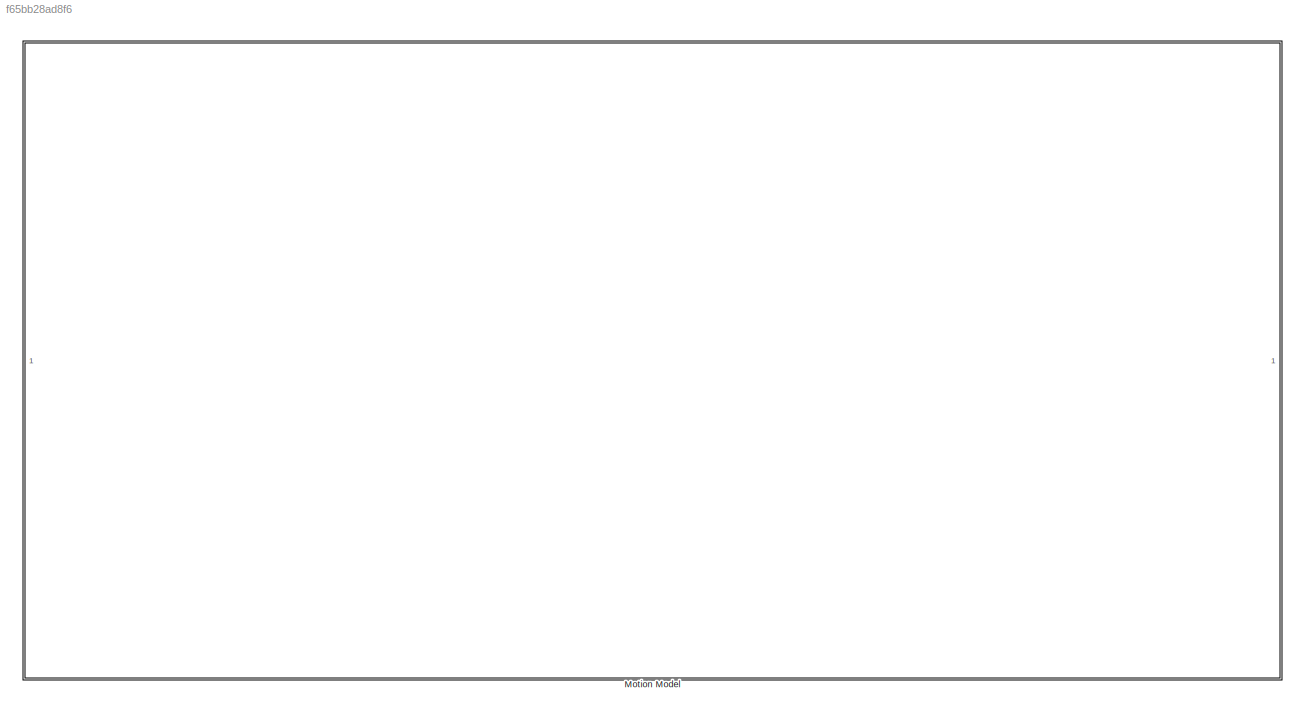
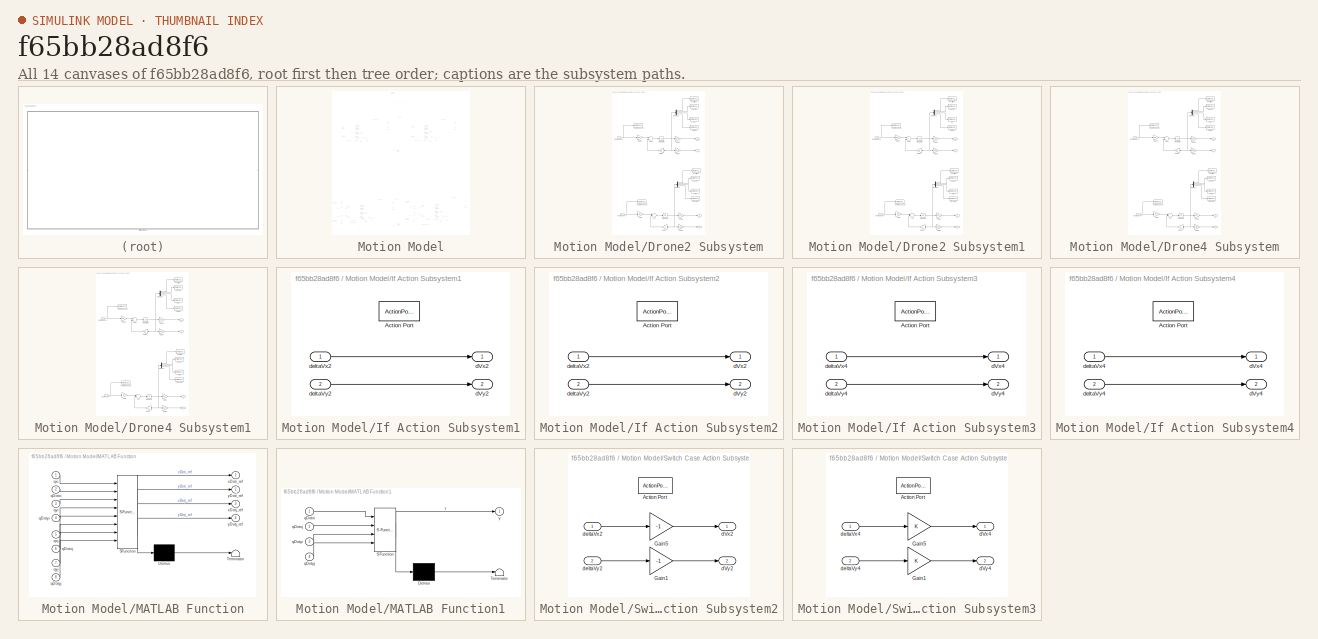
[diagram: thumbnail index - all 14 canvases of the model, root first then tree order]
MODEL slx_f65bb28ad8f6
KIND model
CONFIG AbsTol = auto
CONFIG EnableMultiTasking = off
CONFIG FixedStep = auto
CONFIG MaxStep = auto
CONFIG MinStep = auto
CONFIG RelTol = 1e-3
CONFIG SampleTimeConstraint = Unconstrained
CONFIG Solver = VariableStepAuto
CONFIG SolverName = VariableStepAuto
CONFIG StartTime = tStart 
CONFIG StopTime = tFinal
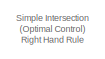
[diagram: Motion Model - part 1/10, top center region]
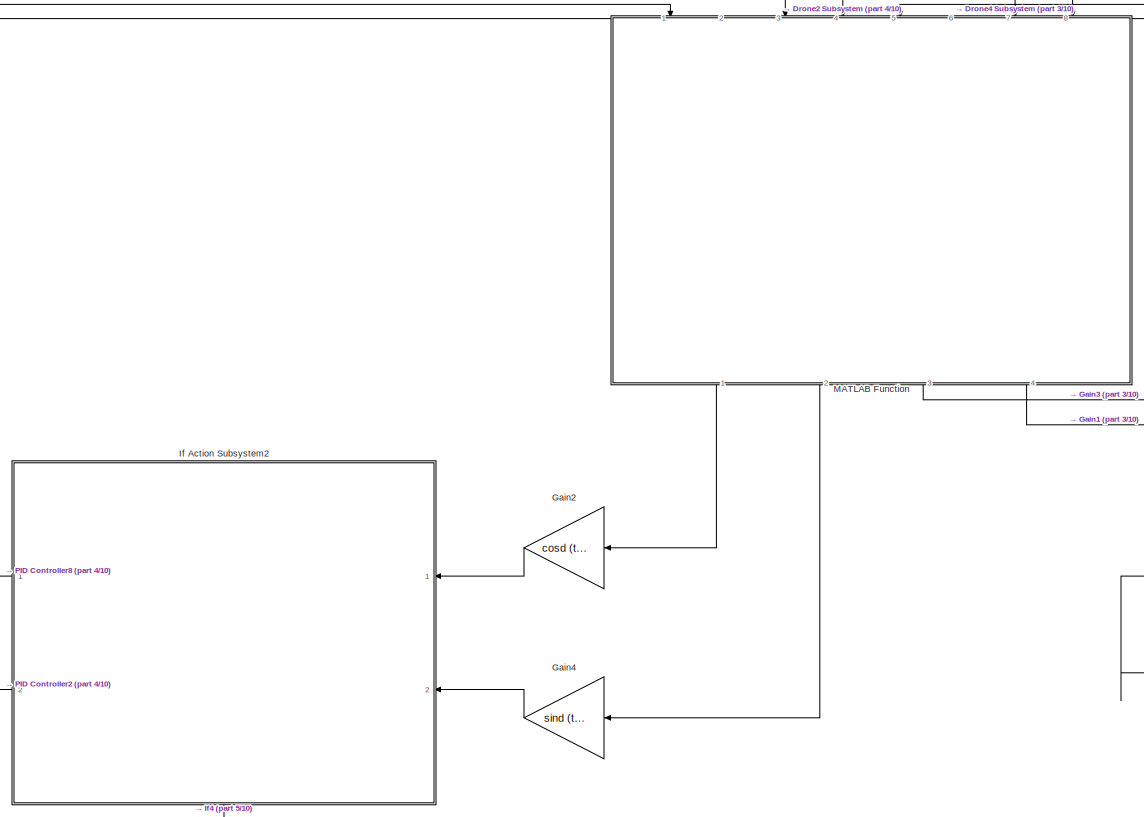
[diagram: Motion Model - part 2/10, top center region]
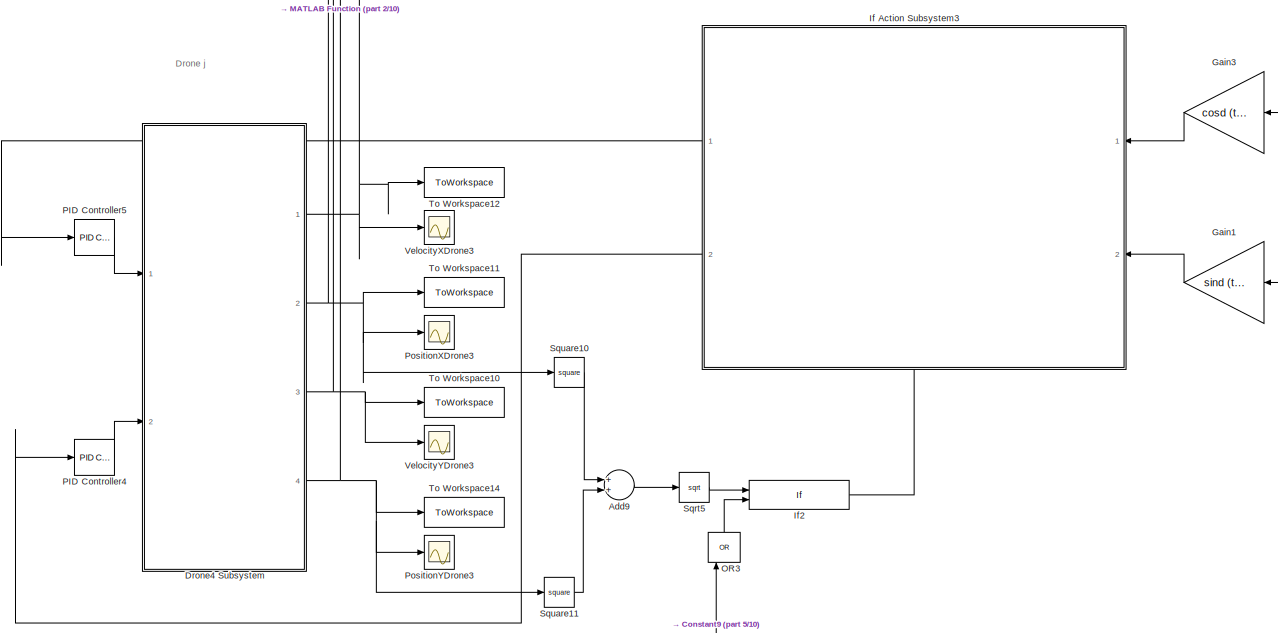
[diagram: Motion Model - part 3/10, top right region]
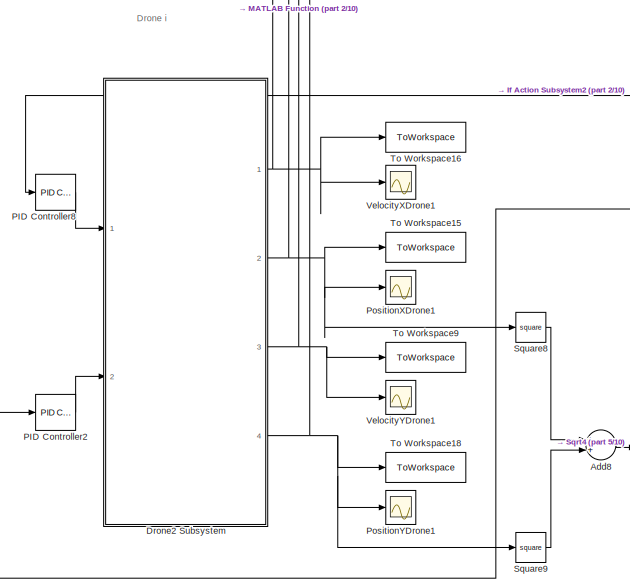
[diagram: Motion Model - part 4/10, top left region]
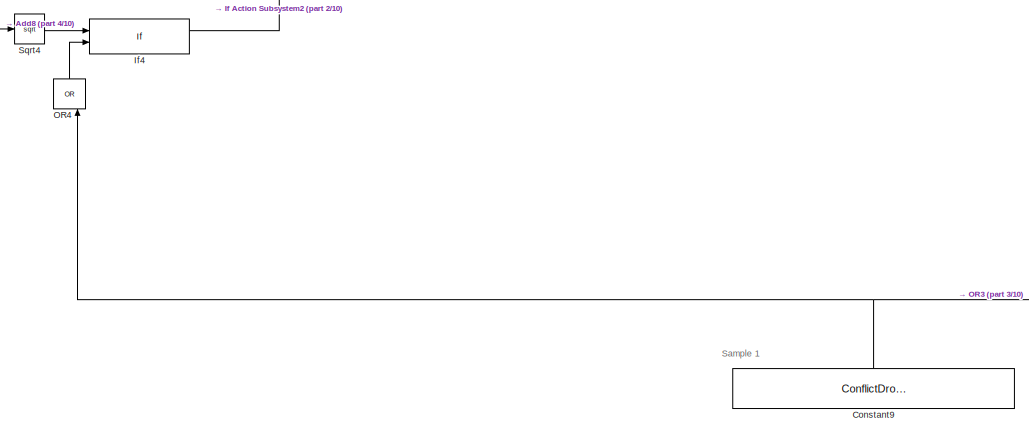
[diagram: Motion Model - part 5/10, central region]
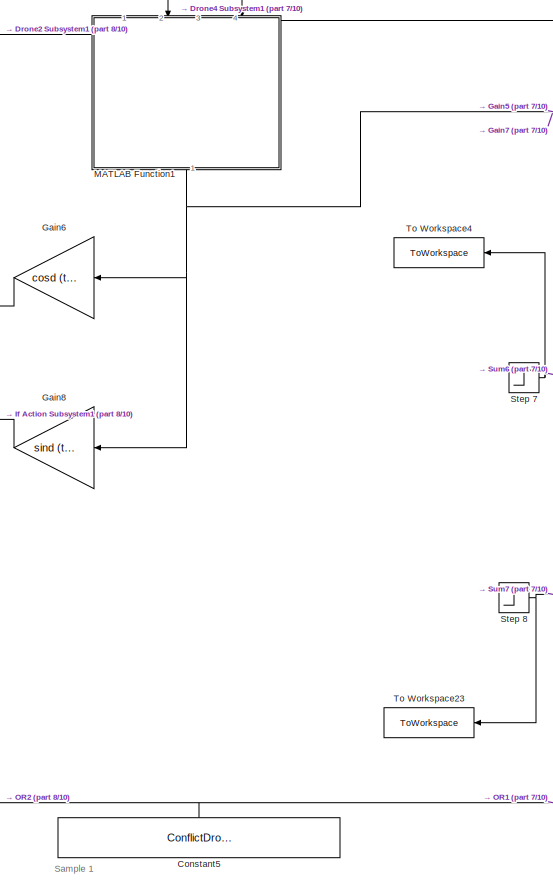
[diagram: Motion Model - part 6/10, bottom center region]
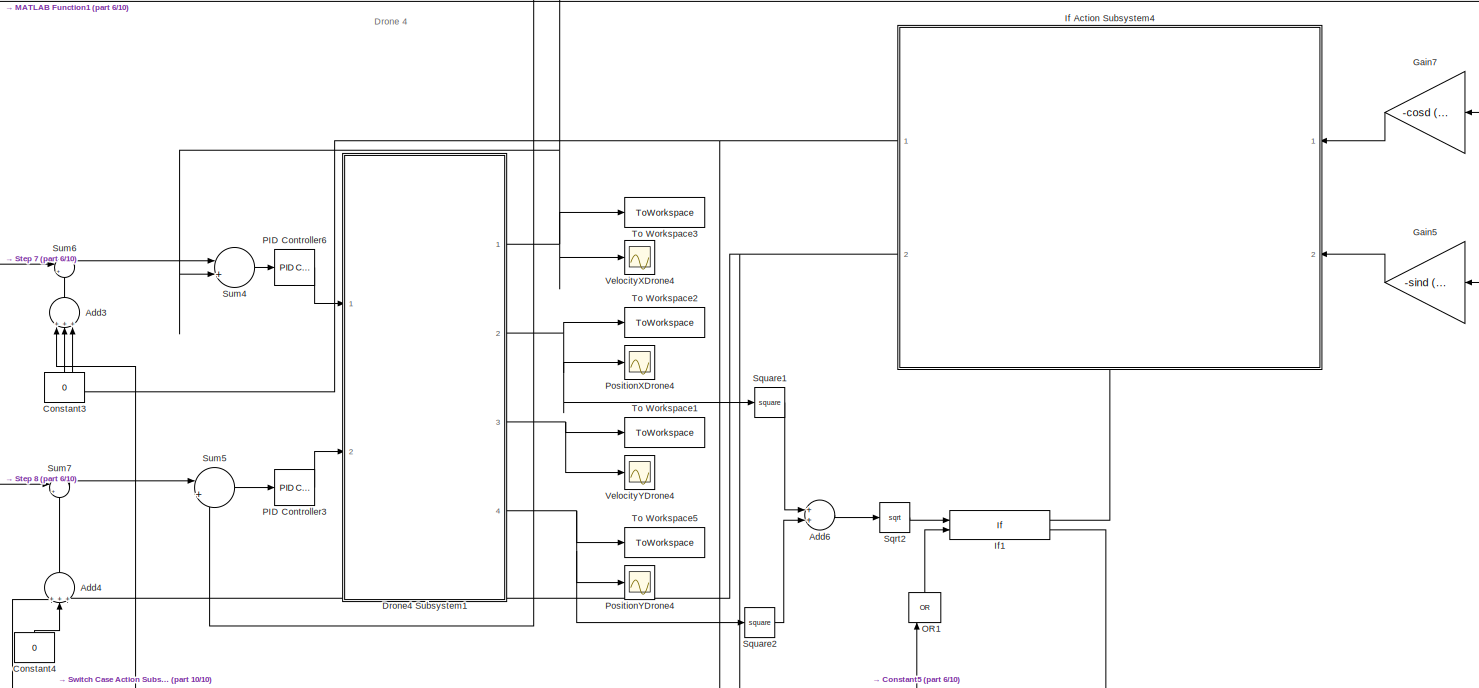
[diagram: Motion Model - part 7/10, bottom right region]
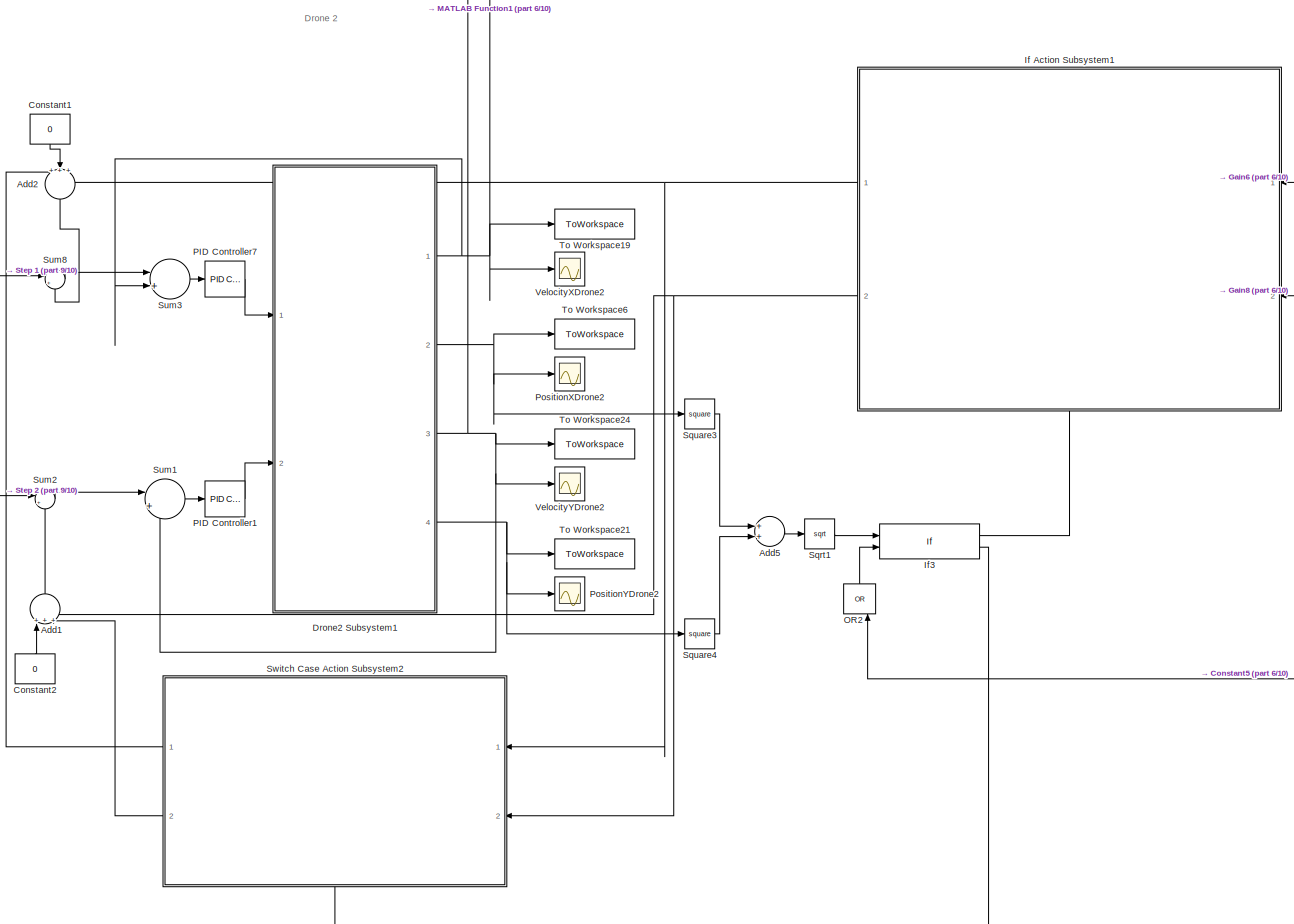
[diagram: Motion Model - part 8/10, bottom left region]
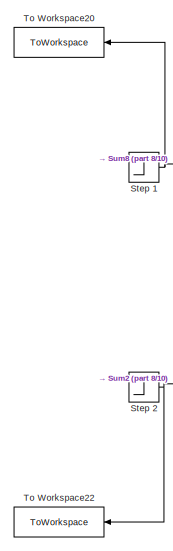
[diagram: Motion Model - part 9/10, bottom left region]
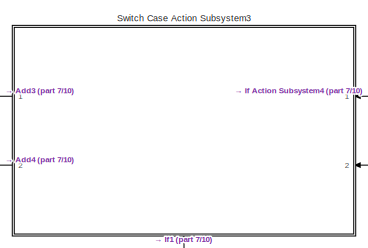
[diagram: Motion Model - part 10/10, bottom right region]
BLOCK [SubSystem] Motion Model
  Ports = []
  RequestExecContextInheritance = off
BLOCK [Sum] Motion Model/Add1
  Commented = on
  InputSameDT = off
  Inputs = +++
  OutDataTypeStr = Inherit: Inherit via internal rule
  Ports = [3, 1]
  SaturateOnIntegerOverflow = off
BLOCK [Sum] Motion Model/Add2
  Commented = on
  InputSameDT = off
  Inputs = +++
  OutDataTypeStr = Inherit: Inherit via internal rule
  Ports = [3, 1]
  SaturateOnIntegerOverflow = off
BLOCK [Sum] Motion Model/Add3
  Commented = on
  InputSameDT = off
  Inputs = +++
  OutDataTypeStr = Inherit: Inherit via internal rule
  Ports = [3, 1]
  SaturateOnIntegerOverflow = off
BLOCK [Sum] Motion Model/Add4
  Commented = on
  InputSameDT = off
  Inputs = +++
  OutDataTypeStr = Inherit: Inherit via internal rule
  Ports = [3, 1]
  SaturateOnIntegerOverflow = off
BLOCK [Sum] Motion Model/Add5
  Commented = on
  InputSameDT = off
  OutDataTypeStr = Inherit: Inherit via internal rule
  Ports = [2, 1]
  SaturateOnIntegerOverflow = off
BLOCK [Sum] Motion Model/Add6
  Commented = on
  InputSameDT = off
  OutDataTypeStr = Inherit: Inherit via internal rule
  Ports = [2, 1]
  SaturateOnIntegerOverflow = off
BLOCK [Sum] Motion Model/Add8
  InputSameDT = off
  OutDataTypeStr = Inherit: Inherit via internal rule
  Ports = [2, 1]
  SaturateOnIntegerOverflow = off
BLOCK [Sum] Motion Model/Add9
  InputSameDT = off
  OutDataTypeStr = Inherit: Inherit via internal rule
  Ports = [2, 1]
  SaturateOnIntegerOverflow = off
BLOCK [Constant] Motion Model/Constant1
  Commented = on
  Value = 0
BLOCK [Constant] Motion Model/Constant2
  Commented = on
  Value = 0
BLOCK [Constant] Motion Model/Constant3
  Commented = on
  Value = 0
BLOCK [Constant] Motion Model/Constant4
  Commented = on
  Value = 0
BLOCK [Constant] Motion Model/Constant5
  Commented = on
  Value = ConflictDrone2andDrone4
BLOCK [Constant] Motion Model/Constant9
  Value = ConflictDrone2andDrone4
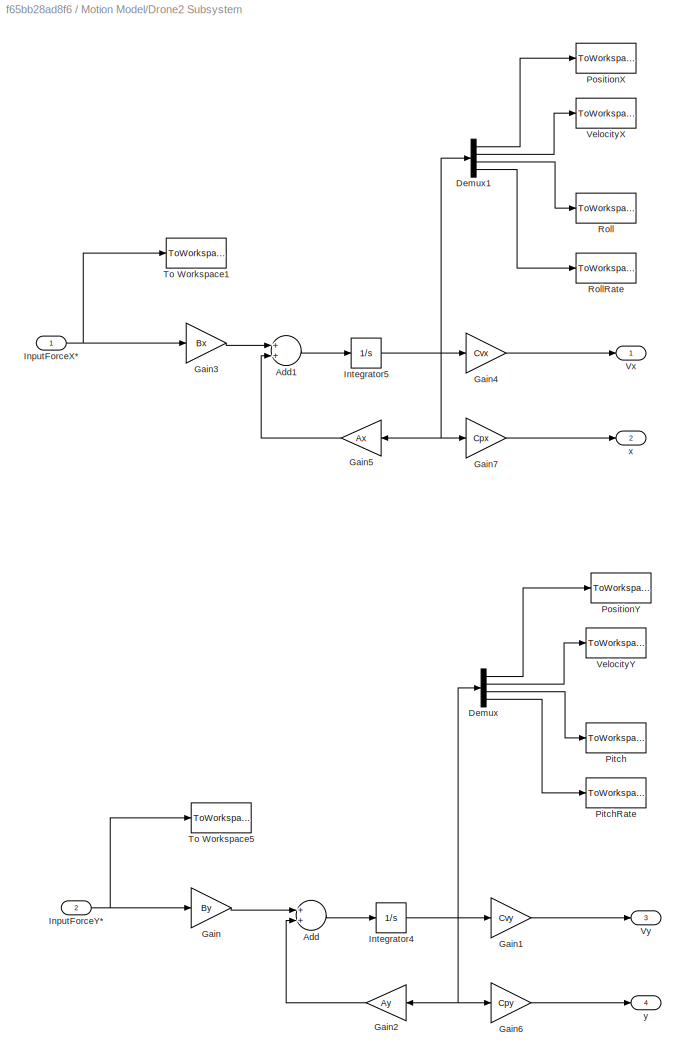
BLOCK [SubSystem] Motion Model/Drone2 Subsystem
  Ports = [2, 4]
  RequestExecContextInheritance = off
BLOCK [Sum] Motion Model/Drone2 Subsystem/Add
  InputSameDT = off
  OutDataTypeStr = Inherit: Inherit via internal rule
  Ports = [2, 1]
  SaturateOnIntegerOverflow = off
BLOCK [Sum] Motion Model/Drone2 Subsystem/Add1
  InputSameDT = off
  OutDataTypeStr = Inherit: Inherit via internal rule
  Ports = [2, 1]
  SaturateOnIntegerOverflow = off
BLOCK [Demux] Motion Model/Drone2 Subsystem/Demux
  DisplayOption = bar
  Ports = [1, 4]
BLOCK [Demux] Motion Model/Drone2 Subsystem/Demux1
  DisplayOption = bar
  Ports = [1, 4]
BLOCK [Gain] Motion Model/Drone2 Subsystem/Gain
  Gain = By
  Multiplication = Matrix(K*u)
  OutDataTypeStr = Inherit: Inherit via internal rule
  ParamDataTypeStr = Inherit: Inherit via internal rule
  SaturateOnIntegerOverflow = off
BLOCK [Gain] Motion Model/Drone2 Subsystem/Gain1
  Gain = Cvy
  Multiplication = Matrix(K*u)
  OutDataTypeStr = Inherit: Inherit via internal rule
  ParamDataTypeStr = Inherit: Inherit via internal rule
  SaturateOnIntegerOverflow = off
BLOCK [Gain] Motion Model/Drone2 Subsystem/Gain2
  Gain = Ay
  Multiplication = Matrix(K*u)
  OutDataTypeStr = Inherit: Inherit via internal rule
  ParamDataTypeStr = Inherit: Inherit via internal rule
  SaturateOnIntegerOverflow = off
BLOCK [Gain] Motion Model/Drone2 Subsystem/Gain3
  Gain = Bx
  Multiplication = Matrix(K*u)
  OutDataTypeStr = Inherit: Inherit via internal rule
  ParamDataTypeStr = Inherit: Inherit via internal rule
  SaturateOnIntegerOverflow = off
BLOCK [Gain] Motion Model/Drone2 Subsystem/Gain4
  Gain = Cvx
  Multiplication = Matrix(K*u)
  OutDataTypeStr = Inherit: Inherit via internal rule
  ParamDataTypeStr = Inherit: Inherit via internal rule
  SaturateOnIntegerOverflow = off
BLOCK [Gain] Motion Model/Drone2 Subsystem/Gain5
  Gain = Ax
  Multiplication = Matrix(K*u)
  OutDataTypeStr = Inherit: Inherit via internal rule
  ParamDataTypeStr = Inherit: Inherit via internal rule
  SaturateOnIntegerOverflow = off
BLOCK [Gain] Motion Model/Drone2 Subsystem/Gain6
  Gain = Cpy
  Multiplication = Matrix(K*u)
  OutDataTypeStr = Inherit: Inherit via internal rule
  ParamDataTypeStr = Inherit: Inherit via internal rule
  SaturateOnIntegerOverflow = off
BLOCK [Gain] Motion Model/Drone2 Subsystem/Gain7
  Gain = Cpx
  Multiplication = Matrix(K*u)
  OutDataTypeStr = Inherit: Inherit via internal rule
  ParamDataTypeStr = Inherit: Inherit via internal rule
  SaturateOnIntegerOverflow = off
BLOCK [Inport] Motion Model/Drone2 Subsystem/InputForceX*
  IconDisplay = Port number
BLOCK [Inport] Motion Model/Drone2 Subsystem/InputForceY* 
  IconDisplay = Port number
  Port = 2
BLOCK [Integrator] Motion Model/Drone2 Subsystem/Integrator4
  InitialCondition = Y20
  Ports = [1, 1]
BLOCK [Integrator] Motion Model/Drone2 Subsystem/Integrator5
  InitialCondition = X20
  Ports = [1, 1]
BLOCK [ToWorkspace] Motion Model/Drone2 Subsystem/Pitch
  FixptAsFi = on
  MaxDataPoints = inf
  Ports = [1]
  SampleTime = -1
  Save2DSignal = 3-D array (concatenate along third dimension)
  VariableName = Theta2
BLOCK [ToWorkspace] Motion Model/Drone2 Subsystem/PitchRate
  FixptAsFi = on
  MaxDataPoints = inf
  Ports = [1]
  SampleTime = -1
  Save2DSignal = 3-D array (concatenate along third dimension)
  VariableName = ThetaDot2
BLOCK [ToWorkspace] Motion Model/Drone2 Subsystem/PositionX
  FixptAsFi = on
  MaxDataPoints = inf
  Ports = [1]
  SampleTime = -1
  Save2DSignal = 3-D array (concatenate along third dimension)
  VariableName = x2
BLOCK [ToWorkspace] Motion Model/Drone2 Subsystem/PositionY
  FixptAsFi = on
  MaxDataPoints = inf
  Ports = [1]
  SampleTime = -1
  Save2DSignal = 3-D array (concatenate along third dimension)
  VariableName = y2
BLOCK [ToWorkspace] Motion Model/Drone2 Subsystem/Roll
  FixptAsFi = on
  MaxDataPoints = inf
  Ports = [1]
  SampleTime = -1
  Save2DSignal = 3-D array (concatenate along third dimension)
  VariableName = Psi2
BLOCK [ToWorkspace] Motion Model/Drone2 Subsystem/RollRate
  FixptAsFi = on
  MaxDataPoints = inf
  Ports = [1]
  SampleTime = -1
  Save2DSignal = 3-D array (concatenate along third dimension)
  VariableName = PsiDot2
BLOCK [ToWorkspace] Motion Model/Drone2 Subsystem/To Workspace1
  FixptAsFi = on
  MaxDataPoints = inf
  Ports = [1]
  SampleTime = -1
  Save2DSignal = 3-D array (concatenate along third dimension)
  VariableName = RollReference2
BLOCK [ToWorkspace] Motion Model/Drone2 Subsystem/To Workspace5
  FixptAsFi = on
  MaxDataPoints = inf
  Ports = [1]
  SampleTime = -1
  Save2DSignal = 3-D array (concatenate along third dimension)
  VariableName = PitchReference2
BLOCK [ToWorkspace] Motion Model/Drone2 Subsystem/VelocityX
  FixptAsFi = on
  MaxDataPoints = inf
  Ports = [1]
  SampleTime = -1
  Save2DSignal = 3-D array (concatenate along third dimension)
  VariableName = vx2
BLOCK [ToWorkspace] Motion Model/Drone2 Subsystem/VelocityY
  FixptAsFi = on
  MaxDataPoints = inf
  Ports = [1]
  SampleTime = -1
  Save2DSignal = 3-D array (concatenate along third dimension)
  VariableName = vy2
BLOCK [Outport] Motion Model/Drone2 Subsystem/Vx
  IconDisplay = Port number
BLOCK [Outport] Motion Model/Drone2 Subsystem/Vy
  IconDisplay = Port number
  Port = 3
BLOCK [Outport] Motion Model/Drone2 Subsystem/x
  IconDisplay = Port number
  Port = 2
BLOCK [Outport] Motion Model/Drone2 Subsystem/y
  IconDisplay = Port number
  Port = 4
BLOCK [SubSystem] Motion Model/Drone2 Subsystem1
  Commented = on
  Ports = [2, 4]
  RequestExecContextInheritance = off
BLOCK [Sum] Motion Model/Drone2 Subsystem1/Add
  InputSameDT = off
  OutDataTypeStr = Inherit: Inherit via internal rule
  Ports = [2, 1]
  SaturateOnIntegerOverflow = off
BLOCK [Sum] Motion Model/Drone2 Subsystem1/Add1
  InputSameDT = off
  OutDataTypeStr = Inherit: Inherit via internal rule
  Ports = [2, 1]
  SaturateOnIntegerOverflow = off
BLOCK [Demux] Motion Model/Drone2 Subsystem1/Demux
  DisplayOption = bar
  Ports = [1, 4]
BLOCK [Demux] Motion Model/Drone2 Subsystem1/Demux1
  DisplayOption = bar
  Ports = [1, 4]
BLOCK [Gain] Motion Model/Drone2 Subsystem1/Gain
  Gain = By
  Multiplication = Matrix(K*u)
  OutDataTypeStr = Inherit: Inherit via internal rule
  ParamDataTypeStr = Inherit: Inherit via internal rule
  SaturateOnIntegerOverflow = off
BLOCK [Gain] Motion Model/Drone2 Subsystem1/Gain1
  Gain = Cvy
  Multiplication = Matrix(K*u)
  OutDataTypeStr = Inherit: Inherit via internal rule
  ParamDataTypeStr = Inherit: Inherit via internal rule
  SaturateOnIntegerOverflow = off
BLOCK [Gain] Motion Model/Drone2 Subsystem1/Gain2
  Gain = Ay
  Multiplication = Matrix(K*u)
  OutDataTypeStr = Inherit: Inherit via internal rule
  ParamDataTypeStr = Inherit: Inherit via internal rule
  SaturateOnIntegerOverflow = off
BLOCK [Gain] Motion Model/Drone2 Subsystem1/Gain3
  Gain = Bx
  Multiplication = Matrix(K*u)
  OutDataTypeStr = Inherit: Inherit via internal rule
  ParamDataTypeStr = Inherit: Inherit via internal rule
  SaturateOnIntegerOverflow = off
BLOCK [Gain] Motion Model/Drone2 Subsystem1/Gain4
  Gain = Cvx
  Multiplication = Matrix(K*u)
  OutDataTypeStr = Inherit: Inherit via internal rule
  ParamDataTypeStr = Inherit: Inherit via internal rule
  SaturateOnIntegerOverflow = off
BLOCK [Gain] Motion Model/Drone2 Subsystem1/Gain5
  Gain = Ax
  Multiplication = Matrix(K*u)
  OutDataTypeStr = Inherit: Inherit via internal rule
  ParamDataTypeStr = Inherit: Inherit via internal rule
  SaturateOnIntegerOverflow = off
BLOCK [Gain] Motion Model/Drone2 Subsystem1/Gain6
  Gain = Cpy
  Multiplication = Matrix(K*u)
  OutDataTypeStr = Inherit: Inherit via internal rule
  ParamDataTypeStr = Inherit: Inherit via internal rule
  SaturateOnIntegerOverflow = off
BLOCK [Gain] Motion Model/Drone2 Subsystem1/Gain7
  Gain = Cpx
  Multiplication = Matrix(K*u)
  OutDataTypeStr = Inherit: Inherit via internal rule
  ParamDataTypeStr = Inherit: Inherit via internal rule
  SaturateOnIntegerOverflow = off
BLOCK [Inport] Motion Model/Drone2 Subsystem1/InputForceX*
  IconDisplay = Port number
BLOCK [Inport] Motion Model/Drone2 Subsystem1/InputForceY* 
  IconDisplay = Port number
  Port = 2
BLOCK [Integrator] Motion Model/Drone2 Subsystem1/Integrator4
  InitialCondition = Y20
  Ports = [1, 1]
BLOCK [Integrator] Motion Model/Drone2 Subsystem1/Integrator5
  InitialCondition = X20
  Ports = [1, 1]
BLOCK [ToWorkspace] Motion Model/Drone2 Subsystem1/Pitch
  FixptAsFi = on
  MaxDataPoints = inf
  Ports = [1]
  SampleTime = -1
  Save2DSignal = 3-D array (concatenate along third dimension)
  VariableName = Theta2
BLOCK [ToWorkspace] Motion Model/Drone2 Subsystem1/PitchRate
  FixptAsFi = on
  MaxDataPoints = inf
  Ports = [1]
  SampleTime = -1
  Save2DSignal = 3-D array (concatenate along third dimension)
  VariableName = ThetaDot2
BLOCK [ToWorkspace] Motion Model/Drone2 Subsystem1/PositionX
  FixptAsFi = on
  MaxDataPoints = inf
  Ports = [1]
  SampleTime = -1
  Save2DSignal = 3-D array (concatenate along third dimension)
  VariableName = x2
BLOCK [ToWorkspace] Motion Model/Drone2 Subsystem1/PositionY
  FixptAsFi = on
  MaxDataPoints = inf
  Ports = [1]
  SampleTime = -1
  Save2DSignal = 3-D array (concatenate along third dimension)
  VariableName = y2
BLOCK [ToWorkspace] Motion Model/Drone2 Subsystem1/Roll
  FixptAsFi = on
  MaxDataPoints = inf
  Ports = [1]
  SampleTime = -1
  Save2DSignal = 3-D array (concatenate along third dimension)
  VariableName = Psi2
BLOCK [ToWorkspace] Motion Model/Drone2 Subsystem1/RollRate
  FixptAsFi = on
  MaxDataPoints = inf
  Ports = [1]
  SampleTime = -1
  Save2DSignal = 3-D array (concatenate along third dimension)
  VariableName = PsiDot2
BLOCK [ToWorkspace] Motion Model/Drone2 Subsystem1/To Workspace1
  FixptAsFi = on
  MaxDataPoints = inf
  Ports = [1]
  SampleTime = -1
  Save2DSignal = 3-D array (concatenate along third dimension)
  VariableName = RollReference2
BLOCK [ToWorkspace] Motion Model/Drone2 Subsystem1/To Workspace5
  FixptAsFi = on
  MaxDataPoints = inf
  Ports = [1]
  SampleTime = -1
  Save2DSignal = 3-D array (concatenate along third dimension)
  VariableName = PitchReference2
BLOCK [ToWorkspace] Motion Model/Drone2 Subsystem1/VelocityX
  FixptAsFi = on
  MaxDataPoints = inf
  Ports = [1]
  SampleTime = -1
  Save2DSignal = 3-D array (concatenate along third dimension)
  VariableName = vx2
BLOCK [ToWorkspace] Motion Model/Drone2 Subsystem1/VelocityY
  FixptAsFi = on
  MaxDataPoints = inf
  Ports = [1]
  SampleTime = -1
  Save2DSignal = 3-D array (concatenate along third dimension)
  VariableName = vy2
BLOCK [Outport] Motion Model/Drone2 Subsystem1/Vx
  IconDisplay = Port number
BLOCK [Outport] Motion Model/Drone2 Subsystem1/Vy
  IconDisplay = Port number
  Port = 3
BLOCK [Outport] Motion Model/Drone2 Subsystem1/x
  IconDisplay = Port number
  Port = 2
BLOCK [Outport] Motion Model/Drone2 Subsystem1/y
  IconDisplay = Port number
  Port = 4
BLOCK [SubSystem] Motion Model/Drone4 Subsystem
  Ports = [2, 4]
  RequestExecContextInheritance = off
BLOCK [Sum] Motion Model/Drone4 Subsystem/Add
  InputSameDT = off
  OutDataTypeStr = Inherit: Inherit via internal rule
  Ports = [2, 1]
  SaturateOnIntegerOverflow = off
BLOCK [Sum] Motion Model/Drone4 Subsystem/Add1
  InputSameDT = off
  OutDataTypeStr = Inherit: Inherit via internal rule
  Ports = [2, 1]
  SaturateOnIntegerOverflow = off
BLOCK [Demux] Motion Model/Drone4 Subsystem/Demux
  DisplayOption = bar
  Ports = [1, 4]
BLOCK [Demux] Motion Model/Drone4 Subsystem/Demux1
  DisplayOption = bar
  Ports = [1, 4]
BLOCK [Gain] Motion Model/Drone4 Subsystem/Gain
  Gain = By
  Multiplication = Matrix(K*u)
  OutDataTypeStr = Inherit: Inherit via internal rule
  ParamDataTypeStr = Inherit: Inherit via internal rule
  SaturateOnIntegerOverflow = off
BLOCK [Gain] Motion Model/Drone4 Subsystem/Gain1
  Gain = Cvy
  Multiplication = Matrix(K*u)
  OutDataTypeStr = Inherit: Inherit via internal rule
  ParamDataTypeStr = Inherit: Inherit via internal rule
  SaturateOnIntegerOverflow = off
BLOCK [Gain] Motion Model/Drone4 Subsystem/Gain2
  Gain = Ay
  Multiplication = Matrix(K*u)
  OutDataTypeStr = Inherit: Inherit via internal rule
  ParamDataTypeStr = Inherit: Inherit via internal rule
  SaturateOnIntegerOverflow = off
BLOCK [Gain] Motion Model/Drone4 Subsystem/Gain3
  Gain = Bx
  Multiplication = Matrix(K*u)
  OutDataTypeStr = Inherit: Inherit via internal rule
  ParamDataTypeStr = Inherit: Inherit via internal rule
  SaturateOnIntegerOverflow = off
BLOCK [Gain] Motion Model/Drone4 Subsystem/Gain4
  Gain = Cvx
  Multiplication = Matrix(K*u)
  OutDataTypeStr = Inherit: Inherit via internal rule
  ParamDataTypeStr = Inherit: Inherit via internal rule
  SaturateOnIntegerOverflow = off
BLOCK [Gain] Motion Model/Drone4 Subsystem/Gain5
  Gain = Ax
  Multiplication = Matrix(K*u)
  OutDataTypeStr = Inherit: Inherit via internal rule
  ParamDataTypeStr = Inherit: Inherit via internal rule
  SaturateOnIntegerOverflow = off
BLOCK [Gain] Motion Model/Drone4 Subsystem/Gain6
  Gain = Cpy
  Multiplication = Matrix(K*u)
  OutDataTypeStr = Inherit: Inherit via internal rule
  ParamDataTypeStr = Inherit: Inherit via internal rule
  SaturateOnIntegerOverflow = off
BLOCK [Gain] Motion Model/Drone4 Subsystem/Gain7
  Gain = Cpx
  Multiplication = Matrix(K*u)
  OutDataTypeStr = Inherit: Inherit via internal rule
  ParamDataTypeStr = Inherit: Inherit via internal rule
  SaturateOnIntegerOverflow = off
BLOCK [Inport] Motion Model/Drone4 Subsystem/InputForceX*
  IconDisplay = Port number
BLOCK [Inport] Motion Model/Drone4 Subsystem/InputForceY* 
  IconDisplay = Port number
  Port = 2
BLOCK [Integrator] Motion Model/Drone4 Subsystem/Integrator4
  InitialCondition = Y40
  Ports = [1, 1]
BLOCK [Integrator] Motion Model/Drone4 Subsystem/Integrator5
  InitialCondition = X40
  Ports = [1, 1]
BLOCK [ToWorkspace] Motion Model/Drone4 Subsystem/Pitch
  FixptAsFi = on
  MaxDataPoints = inf
  Ports = [1]
  SampleTime = -1
  Save2DSignal = 3-D array (concatenate along third dimension)
  VariableName = Theta
BLOCK [ToWorkspace] Motion Model/Drone4 Subsystem/PitchRate
  FixptAsFi = on
  MaxDataPoints = inf
  Ports = [1]
  SampleTime = -1
  Save2DSignal = 3-D array (concatenate along third dimension)
  VariableName = ThetaDot
BLOCK [ToWorkspace] Motion Model/Drone4 Subsystem/PositionX
  FixptAsFi = on
  MaxDataPoints = inf
  Ports = [1]
  SampleTime = -1
  Save2DSignal = 3-D array (concatenate along third dimension)
  VariableName = x
BLOCK [ToWorkspace] Motion Model/Drone4 Subsystem/PositionY
  FixptAsFi = on
  MaxDataPoints = inf
  Ports = [1]
  SampleTime = -1
  Save2DSignal = 3-D array (concatenate along third dimension)
  VariableName = y
BLOCK [ToWorkspace] Motion Model/Drone4 Subsystem/Roll
  FixptAsFi = on
  MaxDataPoints = inf
  Ports = [1]
  SampleTime = -1
  Save2DSignal = 3-D array (concatenate along third dimension)
  VariableName = Psi
BLOCK [ToWorkspace] Motion Model/Drone4 Subsystem/RollRate
  FixptAsFi = on
  MaxDataPoints = inf
  Ports = [1]
  SampleTime = -1
  Save2DSignal = 3-D array (concatenate along third dimension)
  VariableName = PsiDot
BLOCK [ToWorkspace] Motion Model/Drone4 Subsystem/To Workspace1
  FixptAsFi = on
  MaxDataPoints = inf
  Ports = [1]
  SampleTime = -1
  Save2DSignal = 3-D array (concatenate along third dimension)
  VariableName = RollReference
BLOCK [ToWorkspace] Motion Model/Drone4 Subsystem/To Workspace5
  FixptAsFi = on
  MaxDataPoints = inf
  Ports = [1]
  SampleTime = -1
  Save2DSignal = 3-D array (concatenate along third dimension)
  VariableName = PitchReference
BLOCK [ToWorkspace] Motion Model/Drone4 Subsystem/VelocityX
  FixptAsFi = on
  MaxDataPoints = inf
  Ports = [1]
  SampleTime = -1
  Save2DSignal = 3-D array (concatenate along third dimension)
  VariableName = vx
BLOCK [ToWorkspace] Motion Model/Drone4 Subsystem/VelocityY
  FixptAsFi = on
  MaxDataPoints = inf
  Ports = [1]
  SampleTime = -1
  Save2DSignal = 3-D array (concatenate along third dimension)
  VariableName = vy
BLOCK [Outport] Motion Model/Drone4 Subsystem/Vx
  IconDisplay = Port number
BLOCK [Outport] Motion Model/Drone4 Subsystem/Vy
  IconDisplay = Port number
  Port = 3
BLOCK [Outport] Motion Model/Drone4 Subsystem/x
  IconDisplay = Port number
  Port = 2
BLOCK [Outport] Motion Model/Drone4 Subsystem/y
  IconDisplay = Port number
  Port = 4
BLOCK [SubSystem] Motion Model/Drone4 Subsystem1
  Commented = on
  Ports = [2, 4]
  RequestExecContextInheritance = off
BLOCK [Sum] Motion Model/Drone4 Subsystem1/Add
  InputSameDT = off
  OutDataTypeStr = Inherit: Inherit via internal rule
  Ports = [2, 1]
  SaturateOnIntegerOverflow = off
BLOCK [Sum] Motion Model/Drone4 Subsystem1/Add1
  InputSameDT = off
  OutDataTypeStr = Inherit: Inherit via internal rule
  Ports = [2, 1]
  SaturateOnIntegerOverflow = off
BLOCK [Demux] Motion Model/Drone4 Subsystem1/Demux
  DisplayOption = bar
  Ports = [1, 4]
BLOCK [Demux] Motion Model/Drone4 Subsystem1/Demux1
  DisplayOption = bar
  Ports = [1, 4]
BLOCK [Gain] Motion Model/Drone4 Subsystem1/Gain
  Gain = By
  Multiplication = Matrix(K*u)
  OutDataTypeStr = Inherit: Inherit via internal rule
  ParamDataTypeStr = Inherit: Inherit via internal rule
  SaturateOnIntegerOverflow = off
BLOCK [Gain] Motion Model/Drone4 Subsystem1/Gain1
  Gain = Cvy
  Multiplication = Matrix(K*u)
  OutDataTypeStr = Inherit: Inherit via internal rule
  ParamDataTypeStr = Inherit: Inherit via internal rule
  SaturateOnIntegerOverflow = off
BLOCK [Gain] Motion Model/Drone4 Subsystem1/Gain2
  Gain = Ay
  Multiplication = Matrix(K*u)
  OutDataTypeStr = Inherit: Inherit via internal rule
  ParamDataTypeStr = Inherit: Inherit via internal rule
  SaturateOnIntegerOverflow = off
BLOCK [Gain] Motion Model/Drone4 Subsystem1/Gain3
  Gain = Bx
  Multiplication = Matrix(K*u)
  OutDataTypeStr = Inherit: Inherit via internal rule
  ParamDataTypeStr = Inherit: Inherit via internal rule
  SaturateOnIntegerOverflow = off
BLOCK [Gain] Motion Model/Drone4 Subsystem1/Gain4
  Gain = Cvx
  Multiplication = Matrix(K*u)
  OutDataTypeStr = Inherit: Inherit via internal rule
  ParamDataTypeStr = Inherit: Inherit via internal rule
  SaturateOnIntegerOverflow = off
BLOCK [Gain] Motion Model/Drone4 Subsystem1/Gain5
  Gain = Ax
  Multiplication = Matrix(K*u)
  OutDataTypeStr = Inherit: Inherit via internal rule
  ParamDataTypeStr = Inherit: Inherit via internal rule
  SaturateOnIntegerOverflow = off
BLOCK [Gain] Motion Model/Drone4 Subsystem1/Gain6
  Gain = Cpy
  Multiplication = Matrix(K*u)
  OutDataTypeStr = Inherit: Inherit via internal rule
  ParamDataTypeStr = Inherit: Inherit via internal rule
  SaturateOnIntegerOverflow = off
BLOCK [Gain] Motion Model/Drone4 Subsystem1/Gain7
  Gain = Cpx
  Multiplication = Matrix(K*u)
  OutDataTypeStr = Inherit: Inherit via internal rule
  ParamDataTypeStr = Inherit: Inherit via internal rule
  SaturateOnIntegerOverflow = off
BLOCK [Inport] Motion Model/Drone4 Subsystem1/InputForceX*
  IconDisplay = Port number
BLOCK [Inport] Motion Model/Drone4 Subsystem1/InputForceY* 
  IconDisplay = Port number
  Port = 2
BLOCK [Integrator] Motion Model/Drone4 Subsystem1/Integrator4
  InitialCondition = Y40
  Ports = [1, 1]
BLOCK [Integrator] Motion Model/Drone4 Subsystem1/Integrator5
  InitialCondition = X40
  Ports = [1, 1]
BLOCK [ToWorkspace] Motion Model/Drone4 Subsystem1/Pitch
  FixptAsFi = on
  MaxDataPoints = inf
  Ports = [1]
  SampleTime = -1
  Save2DSignal = 3-D array (concatenate along third dimension)
  VariableName = Theta
BLOCK [ToWorkspace] Motion Model/Drone4 Subsystem1/PitchRate
  FixptAsFi = on
  MaxDataPoints = inf
  Ports = [1]
  SampleTime = -1
  Save2DSignal = 3-D array (concatenate along third dimension)
  VariableName = ThetaDot
BLOCK [ToWorkspace] Motion Model/Drone4 Subsystem1/PositionX
  FixptAsFi = on
  MaxDataPoints = inf
  Ports = [1]
  SampleTime = -1
  Save2DSignal = 3-D array (concatenate along third dimension)
  VariableName = x
BLOCK [ToWorkspace] Motion Model/Drone4 Subsystem1/PositionY
  FixptAsFi = on
  MaxDataPoints = inf
  Ports = [1]
  SampleTime = -1
  Save2DSignal = 3-D array (concatenate along third dimension)
  VariableName = y
BLOCK [ToWorkspace] Motion Model/Drone4 Subsystem1/Roll
  FixptAsFi = on
  MaxDataPoints = inf
  Ports = [1]
  SampleTime = -1
  Save2DSignal = 3-D array (concatenate along third dimension)
  VariableName = Psi
BLOCK [ToWorkspace] Motion Model/Drone4 Subsystem1/RollRate
  FixptAsFi = on
  MaxDataPoints = inf
  Ports = [1]
  SampleTime = -1
  Save2DSignal = 3-D array (concatenate along third dimension)
  VariableName = PsiDot
BLOCK [ToWorkspace] Motion Model/Drone4 Subsystem1/To Workspace1
  FixptAsFi = on
  MaxDataPoints = inf
  Ports = [1]
  SampleTime = -1
  Save2DSignal = 3-D array (concatenate along third dimension)
  VariableName = RollReference
BLOCK [ToWorkspace] Motion Model/Drone4 Subsystem1/To Workspace5
  FixptAsFi = on
  MaxDataPoints = inf
  Ports = [1]
  SampleTime = -1
  Save2DSignal = 3-D array (concatenate along third dimension)
  VariableName = PitchReference
BLOCK [ToWorkspace] Motion Model/Drone4 Subsystem1/VelocityX
  FixptAsFi = on
  MaxDataPoints = inf
  Ports = [1]
  SampleTime = -1
  Save2DSignal = 3-D array (concatenate along third dimension)
  VariableName = vx
BLOCK [ToWorkspace] Motion Model/Drone4 Subsystem1/VelocityY
  FixptAsFi = on
  MaxDataPoints = inf
  Ports = [1]
  SampleTime = -1
  Save2DSignal = 3-D array (concatenate along third dimension)
  VariableName = vy
BLOCK [Outport] Motion Model/Drone4 Subsystem1/Vx
  IconDisplay = Port number
BLOCK [Outport] Motion Model/Drone4 Subsystem1/Vy
  IconDisplay = Port number
  Port = 3
BLOCK [Outport] Motion Model/Drone4 Subsystem1/x
  IconDisplay = Port number
  Port = 2
BLOCK [Outport] Motion Model/Drone4 Subsystem1/y
  IconDisplay = Port number
  Port = 4
BLOCK [Gain] Motion Model/Gain1
  Gain = sind (theta4)
  OutDataTypeStr = Inherit: Inherit via internal rule
  ParamDataTypeStr = Inherit: Inherit via internal rule
  SaturateOnIntegerOverflow = off
BLOCK [Gain] Motion Model/Gain2
  Gain = cosd (theta2)
  OutDataTypeStr = Inherit: Inherit via internal rule
  ParamDataTypeStr = Inherit: Inherit via internal rule
  SaturateOnIntegerOverflow = off
BLOCK [Gain] Motion Model/Gain3
  Gain = cosd (theta4)
  OutDataTypeStr = Inherit: Inherit via internal rule
  ParamDataTypeStr = Inherit: Inherit via internal rule
  SaturateOnIntegerOverflow = off
BLOCK [Gain] Motion Model/Gain4
  Gain = sind (theta2)
  OutDataTypeStr = Inherit: Inherit via internal rule
  ParamDataTypeStr = Inherit: Inherit via internal rule
  SaturateOnIntegerOverflow = off
BLOCK [Gain] Motion Model/Gain5
  Commented = on
  Gain = -sind (theta4)
  OutDataTypeStr = Inherit: Inherit via internal rule
  ParamDataTypeStr = Inherit: Inherit via internal rule
  SaturateOnIntegerOverflow = off
BLOCK [Gain] Motion Model/Gain6
  Commented = on
  Gain = cosd (theta2)
  OutDataTypeStr = Inherit: Inherit via internal rule
  ParamDataTypeStr = Inherit: Inherit via internal rule
  SaturateOnIntegerOverflow = off
BLOCK [Gain] Motion Model/Gain7
  Commented = on
  Gain = -cosd (theta4)
  OutDataTypeStr = Inherit: Inherit via internal rule
  ParamDataTypeStr = Inherit: Inherit via internal rule
  SaturateOnIntegerOverflow = off
BLOCK [Gain] Motion Model/Gain8
  Commented = on
  Gain = sind (theta2)
  OutDataTypeStr = Inherit: Inherit via internal rule
  ParamDataTypeStr = Inherit: Inherit via internal rule
  SaturateOnIntegerOverflow = off
BLOCK [SubSystem] Motion Model/If Action Subsystem1
  Commented = on
  Ports = [2, 2, 0, 0, 0, 0, 0, 1]
  RequestExecContextInheritance = off
  TreatAsAtomicUnit = on
BLOCK [ActionPort] Motion Model/If Action Subsystem1/Action Port
  ActionType = then
BLOCK [Outport] Motion Model/If Action Subsystem1/dVx2
  IconDisplay = Port number
BLOCK [Outport] Motion Model/If Action Subsystem1/dVy2
  IconDisplay = Port number
  Port = 2
BLOCK [Inport] Motion Model/If Action Subsystem1/deltaVx2
  IconDisplay = Port number
BLOCK [Inport] Motion Model/If Action Subsystem1/deltaVy2
  IconDisplay = Port number
  Port = 2
BLOCK [SubSystem] Motion Model/If Action Subsystem2
  Ports = [2, 2, 0, 0, 0, 0, 0, 1]
  RequestExecContextInheritance = off
  TreatAsAtomicUnit = on
BLOCK [ActionPort] Motion Model/If Action Subsystem2/Action Port
  ActionType = then
BLOCK [Outport] Motion Model/If Action Subsystem2/dVx2
  IconDisplay = Port number
BLOCK [Outport] Motion Model/If Action Subsystem2/dVy2
  IconDisplay = Port number
  Port = 2
BLOCK [Inport] Motion Model/If Action Subsystem2/deltaVx2
  IconDisplay = Port number
BLOCK [Inport] Motion Model/If Action Subsystem2/deltaVy2
  IconDisplay = Port number
  Port = 2
BLOCK [SubSystem] Motion Model/If Action Subsystem3
  Ports = [2, 2, 0, 0, 0, 0, 0, 1]
  RequestExecContextInheritance = off
  TreatAsAtomicUnit = on
BLOCK [ActionPort] Motion Model/If Action Subsystem3/Action Port
  ActionType = then
BLOCK [Outport] Motion Model/If Action Subsystem3/dVx4
  IconDisplay = Port number
BLOCK [Outport] Motion Model/If Action Subsystem3/dVy4
  IconDisplay = Port number
  Port = 2
BLOCK [Inport] Motion Model/If Action Subsystem3/deltaVx4
  IconDisplay = Port number
BLOCK [Inport] Motion Model/If Action Subsystem3/deltaVy4
  IconDisplay = Port number
  Port = 2
BLOCK [SubSystem] Motion Model/If Action Subsystem4
  Commented = on
  Ports = [2, 2, 0, 0, 0, 0, 0, 1]
  RequestExecContextInheritance = off
  TreatAsAtomicUnit = on
BLOCK [ActionPort] Motion Model/If Action Subsystem4/Action Port
  ActionType = then
BLOCK [Outport] Motion Model/If Action Subsystem4/dVx4
  IconDisplay = Port number
BLOCK [Outport] Motion Model/If Action Subsystem4/dVy4
  IconDisplay = Port number
  Port = 2
BLOCK [Inport] Motion Model/If Action Subsystem4/deltaVx4
  IconDisplay = Port number
BLOCK [Inport] Motion Model/If Action Subsystem4/deltaVy4
  IconDisplay = Port number
  Port = 2
BLOCK [If] Motion Model/If1
  Commented = on
  ElseIfExpressions = (u1 > R)&(u2 == 1)
  IfExpression = (u1 <= R)&(u2 == 1)
  NumInputs = 2
  Ports = [2, 2]
  ShowElse = off
BLOCK [If] Motion Model/If2
  IfExpression = (u1 <= R)&(u2 == 1)
  NumInputs = 2
  Ports = [2, 1]
  ShowElse = off
BLOCK [If] Motion Model/If3
  Commented = on
  ElseIfExpressions = (u1 > R)&(u2 == 1)
  IfExpression = (u1 <= R)&(u2 == 1)
  NumInputs = 2
  Ports = [2, 2]
  ShowElse = off
BLOCK [If] Motion Model/If4
  ElseIfExpressions = (u1 > R)&(u2 == 1)
  IfExpression = (u1 <= R)&(u2 == 1)
  NumInputs = 2
  Ports = [2, 2]
  ShowElse = off
BLOCK [SubSystem] Motion Model/MATLAB Function
  ErrorFcn = Stateflow.Translate.translate
  PermitHierarchicalResolution = ExplicitOnly
  Ports = [8, 4]
  RequestExecContextInheritance = off
  SFBlockType = MATLAB Function
  TreatAsAtomicUnit = on
BLOCK [Demux] Motion Model/MATLAB Function/ Demux 
  Outputs = 1
  Ports = [1, 1]
BLOCK [S-Function] Motion Model/MATLAB Function/ SFunction 
  EnableBusSupport = on
  FunctionName = sf_sfun
  PortCounts = [8 5]
  Ports = [8, 5]
  SFcnIsStateOwnerBlock = off
  SFunctionDeploymentMode = off
  Tag = Stateflow S-Function NetworkModelSimpleIntersectionOptimalControl 2
BLOCK [Terminator] Motion Model/MATLAB Function/ Terminator 
BLOCK [Inport] Motion Model/MATLAB Function/qDotxi
  IconDisplay = Port number
  Port = 2
BLOCK [Inport] Motion Model/MATLAB Function/qDotxj
  IconDisplay = Port number
  Port = 6
BLOCK [Inport] Motion Model/MATLAB Function/qDotyi
  IconDisplay = Port number
  Port = 4
BLOCK [Inport] Motion Model/MATLAB Function/qDotyj
  IconDisplay = Port number
  Port = 8
BLOCK [Inport] Motion Model/MATLAB Function/qxi
  IconDisplay = Port number
BLOCK [Inport] Motion Model/MATLAB Function/qxj
  IconDisplay = Port number
  Port = 5
BLOCK [Inport] Motion Model/MATLAB Function/qyi
  IconDisplay = Port number
  Port = 3
BLOCK [Inport] Motion Model/MATLAB Function/qyj
  IconDisplay = Port number
  Port = 7
BLOCK [Outport] Motion Model/MATLAB Function/xDoti_ref
  IconDisplay = Port number
BLOCK [Outport] Motion Model/MATLAB Function/xDotj_ref
  IconDisplay = Port number
  Port = 3
BLOCK [Outport] Motion Model/MATLAB Function/yDoti_ref
  IconDisplay = Port number
  Port = 2
BLOCK [Outport] Motion Model/MATLAB Function/yDotj_ref
  IconDisplay = Port number
  Port = 4
BLOCK [SubSystem] Motion Model/MATLAB Function1
  Commented = on
  ErrorFcn = Stateflow.Translate.translate
  PermitHierarchicalResolution = ExplicitOnly
  Ports = [4, 1]
  RequestExecContextInheritance = off
  SFBlockType = MATLAB Function
  TreatAsAtomicUnit = on
BLOCK [Demux] Motion Model/MATLAB Function1/ Demux 
  Outputs = 1
  Ports = [1, 1]
BLOCK [S-Function] Motion Model/MATLAB Function1/ SFunction 
  EnableBusSupport = on
  FunctionName = sf_sfun
  PortCounts = [4 2]
  Ports = [4, 2]
  SFcnIsStateOwnerBlock = off
  SFunctionDeploymentMode = off
  Tag = Stateflow S-Function NetworkModelSimpleIntersectionOptimalControl 1
BLOCK [Terminator] Motion Model/MATLAB Function1/ Terminator 
BLOCK [Inport] Motion Model/MATLAB Function1/qDotxi
  IconDisplay = Port number
BLOCK [Inport] Motion Model/MATLAB Function1/qDotxj
  IconDisplay = Port number
  Port = 2
BLOCK [Inport] Motion Model/MATLAB Function1/qDotyi
  IconDisplay = Port number
  Port = 3
BLOCK [Inport] Motion Model/MATLAB Function1/qDotyj
  IconDisplay = Port number
  Port = 4
BLOCK [Outport] Motion Model/MATLAB Function1/y
  IconDisplay = Port number
BLOCK [Logic] Motion Model/OR1
  AllPortsSameDT = off
  Commented = on
  IconShape = distinctive
  Inputs = 3
  Operator = OR
  OutDataTypeStr = 'double'
  Ports = [3, 1]
BLOCK [Logic] Motion Model/OR2
  AllPortsSameDT = off
  Commented = on
  IconShape = distinctive
  Inputs = 3
  Operator = OR
  OutDataTypeStr = 'double'
  Ports = [3, 1]
BLOCK [Logic] Motion Model/OR3
  AllPortsSameDT = off
  IconShape = distinctive
  Inputs = 3
  Operator = OR
  OutDataTypeStr = 'double'
  Ports = [3, 1]
BLOCK [Logic] Motion Model/OR4
  AllPortsSameDT = off
  IconShape = distinctive
  Inputs = 3
  Operator = OR
  OutDataTypeStr = 'double'
  Ports = [3, 1]
BLOCK [Reference] Motion Model/PID Controller1  REF=simulink/Continuous/PID Controller
  Commented = on
  Ports = [1, 1]
  SourceBlock = simulink/Continuous/PID Controller
  SourceProductBaseCode = SL
  SourceProductName = Simulink
  SourceType = PID 1dof
BLOCK [Reference] Motion Model/PID Controller2  REF=simulink/Continuous/PID Controller
  Ports = [1, 1]
  SourceBlock = simulink/Continuous/PID Controller
  SourceProductBaseCode = SL
  SourceProductName = Simulink
  SourceType = PID 1dof
BLOCK [Reference] Motion Model/PID Controller3  REF=simulink/Continuous/PID Controller
  Commented = on
  Ports = [1, 1]
  SourceBlock = simulink/Continuous/PID Controller
  SourceProductBaseCode = SL
  SourceProductName = Simulink
  SourceType = PID 1dof
BLOCK [Reference] Motion Model/PID Controller4  REF=simulink/Continuous/PID Controller
  Ports = [1, 1]
  SourceBlock = simulink/Continuous/PID Controller
  SourceProductBaseCode = SL
  SourceProductName = Simulink
  SourceType = PID 1dof
BLOCK [Reference] Motion Model/PID Controller5  REF=simulink/Continuous/PID Controller
  Ports = [1, 1]
  SourceBlock = simulink/Continuous/PID Controller
  SourceProductBaseCode = SL
  SourceProductName = Simulink
  SourceType = PID 1dof
BLOCK [Reference] Motion Model/PID Controller6  REF=simulink/Continuous/PID Controller
  Commented = on
  Ports = [1, 1]
  SourceBlock = simulink/Continuous/PID Controller
  SourceProductBaseCode = SL
  SourceProductName = Simulink
  SourceType = PID 1dof
BLOCK [Reference] Motion Model/PID Controller7  REF=simulink/Continuous/PID Controller
  Commented = on
  Ports = [1, 1]
  SourceBlock = simulink/Continuous/PID Controller
  SourceProductBaseCode = SL
  SourceProductName = Simulink
  SourceType = PID 1dof
BLOCK [Reference] Motion Model/PID Controller8  REF=simulink/Continuous/PID Controller
  Ports = [1, 1]
  SourceBlock = simulink/Continuous/PID Controller
  SourceProductBaseCode = SL
  SourceProductName = Simulink
  SourceType = PID 1dof
BLOCK [Scope] Motion Model/PositionXDrone1
  Floating = off
  NumInputPorts = 1
  Ports = [1]
  ScopeSpecificationString = Simulink.scopes.TimeScopeBlockCfg('CurrentConfiguration', extmgr.ConfigurationSet(extmgr.Configuration('Core','General UI',true),extmgr.Configuration('Core','Source UI',true),extmgr.Configuration('Sources','WiredSimulink',true,'DataLoggingVariableName','ScopeData1'),extmgr.Configuration('Visuals','Time Domain',true,'SerializedDisplays',{struct('MinYLimReal','-13.93778','MaxYLimReal','12.65975','YL...<+1455ch>
BLOCK [Scope] Motion Model/PositionXDrone2
  Commented = on
  Floating = off
  NumInputPorts = 1
  Ports = [1]
  ScopeSpecificationString = Simulink.scopes.TimeScopeBlockCfg('CurrentConfiguration', extmgr.ConfigurationSet(extmgr.Configuration('Core','General UI',true),extmgr.Configuration('Core','Source UI',true),extmgr.Configuration('Sources','WiredSimulink',true,'DataLoggingVariableName','ScopeData1'),extmgr.Configuration('Visuals','Time Domain',true,'SerializedDisplays',{struct('MinYLimReal','-13.93778','MaxYLimReal','12.65975','YL...<+1455ch>
BLOCK [Scope] Motion Model/PositionXDrone3
  Floating = off
  NumInputPorts = 1
  Ports = [1]
  ScopeSpecificationString = Simulink.scopes.TimeScopeBlockCfg('CurrentConfiguration', extmgr.ConfigurationSet(extmgr.Configuration('Core','General UI',true),extmgr.Configuration('Core','Source UI',true),extmgr.Configuration('Sources','WiredSimulink',true,'DataLoggingVariableName','ScopeData2'),extmgr.Configuration('Visuals','Time Domain',true,'SerializedDisplays',{struct('MinYLimReal','-23.95767','MaxYLimReal','115.61905','Y...<+1459ch>
BLOCK [Scope] Motion Model/PositionXDrone4
  Commented = on
  Floating = off
  NumInputPorts = 1
  Ports = [1]
  ScopeSpecificationString = Simulink.scopes.TimeScopeBlockCfg('CurrentConfiguration', extmgr.ConfigurationSet(extmgr.Configuration('Core','General UI',true),extmgr.Configuration('Core','Source UI',true),extmgr.Configuration('Sources','WiredSimulink',true,'DataLoggingVariableName','ScopeData2'),extmgr.Configuration('Visuals','Time Domain',true,'SerializedDisplays',{struct('MinYLimReal','-23.95767','MaxYLimReal','115.61905','Y...<+1459ch>
BLOCK [Scope] Motion Model/PositionYDrone1
  Floating = off
  NumInputPorts = 1
  Ports = [1]
  ScopeSpecificationString = Simulink.scopes.TimeScopeBlockCfg('CurrentConfiguration', extmgr.ConfigurationSet(extmgr.Configuration('Core','General UI',true),extmgr.Configuration('Core','Source UI',true),extmgr.Configuration('Sources','WiredSimulink',true,'DataLoggingVariableName','ScopeData3'),extmgr.Configuration('Visuals','Time Domain',true,'SerializedDisplays',{struct('MinYLimReal','-12488.44039','MaxYLimReal','112495.937...<+1759ch>
BLOCK [Scope] Motion Model/PositionYDrone2
  Commented = on
  Floating = off
  NumInputPorts = 1
  Ports = [1]
  ScopeSpecificationString = Simulink.scopes.TimeScopeBlockCfg('CurrentConfiguration', extmgr.ConfigurationSet(extmgr.Configuration('Core','General UI',true),extmgr.Configuration('Core','Source UI',true),extmgr.Configuration('Sources','WiredSimulink',true,'DataLoggingVariableName','ScopeData3'),extmgr.Configuration('Visuals','Time Domain',true,'SerializedDisplays',{struct('MinYLimReal','-12488.44039','MaxYLimReal','112495.937...<+1759ch>
BLOCK [Scope] Motion Model/PositionYDrone3
  Floating = off
  NumInputPorts = 1
  Ports = [1]
  ScopeSpecificationString = Simulink.scopes.TimeScopeBlockCfg('CurrentConfiguration', extmgr.ConfigurationSet(extmgr.Configuration('Core','General UI',true),extmgr.Configuration('Core','Source UI',true),extmgr.Configuration('Sources','WiredSimulink',true,'DataLoggingVariableName','ScopeData4'),extmgr.Configuration('Visuals','Time Domain',true,'SerializedDisplays',{struct('MinYLimReal','-115.61905','MaxYLimReal','23.95767','Y...<+1461ch>
BLOCK [Scope] Motion Model/PositionYDrone4
  Commented = on
  Floating = off
  NumInputPorts = 1
  Ports = [1]
  ScopeSpecificationString = Simulink.scopes.TimeScopeBlockCfg('CurrentConfiguration', extmgr.ConfigurationSet(extmgr.Configuration('Core','General UI',true),extmgr.Configuration('Core','Source UI',true),extmgr.Configuration('Sources','WiredSimulink',true,'DataLoggingVariableName','ScopeData4'),extmgr.Configuration('Visuals','Time Domain',true,'SerializedDisplays',{struct('MinYLimReal','-115.61905','MaxYLimReal','23.95767','Y...<+1461ch>
BLOCK [Sqrt] Motion Model/Sqrt1
  Commented = on
BLOCK [Sqrt] Motion Model/Sqrt2
  Commented = on
BLOCK [Sqrt] Motion Model/Sqrt4
BLOCK [Sqrt] Motion Model/Sqrt5
BLOCK [Math] Motion Model/Square1
  Commented = on
  Operator = square
  Ports = [1, 1]
BLOCK [Math] Motion Model/Square10
  Operator = square
  Ports = [1, 1]
BLOCK [Math] Motion Model/Square11
  Operator = square
  Ports = [1, 1]
BLOCK [Math] Motion Model/Square2
  Commented = on
  Operator = square
  Ports = [1, 1]
BLOCK [Math] Motion Model/Square3
  Commented = on
  Operator = square
  Ports = [1, 1]
BLOCK [Math] Motion Model/Square4
  Commented = on
  Operator = square
  Ports = [1, 1]
BLOCK [Math] Motion Model/Square8
  Operator = square
  Ports = [1, 1]
BLOCK [Math] Motion Model/Square9
  Operator = square
  Ports = [1, 1]
BLOCK [Step] Motion Model/Step 1
  After = VelocityStarX2
  Commented = on
  SampleTime = 0
  Time = 0
BLOCK [Step] Motion Model/Step 2
  After = VelocityStarY2
  Commented = on
  SampleTime = 0
  Time = 0
BLOCK [Step] Motion Model/Step 7
  After = VelocityStarX4
  Commented = on
  SampleTime = 0
  Time = 0
BLOCK [Step] Motion Model/Step 8
  After = VelocityStarY4
  Commented = on
  SampleTime = 0
  Time = 0
BLOCK [Sum] Motion Model/Sum1
  Commented = on
  IconShape = round
  InputSameDT = off
  Inputs = |+-
  OutDataTypeStr = Inherit: Inherit via internal rule
  Ports = [2, 1]
  SaturateOnIntegerOverflow = off
BLOCK [Sum] Motion Model/Sum2
  Commented = on
  IconShape = round
  InputSameDT = off
  Inputs = |+-
  OutDataTypeStr = Inherit: Inherit via internal rule
  Ports = [2, 1]
  SaturateOnIntegerOverflow = off
BLOCK [Sum] Motion Model/Sum3
  Commented = on
  IconShape = round
  InputSameDT = off
  Inputs = |+-
  OutDataTypeStr = Inherit: Inherit via internal rule
  Ports = [2, 1]
  SaturateOnIntegerOverflow = off
BLOCK [Sum] Motion Model/Sum4
  Commented = on
  IconShape = round
  InputSameDT = off
  Inputs = |+-
  OutDataTypeStr = Inherit: Inherit via internal rule
  Ports = [2, 1]
  SaturateOnIntegerOverflow = off
BLOCK [Sum] Motion Model/Sum5
  Commented = on
  IconShape = round
  InputSameDT = off
  Inputs = |+-
  OutDataTypeStr = Inherit: Inherit via internal rule
  Ports = [2, 1]
  SaturateOnIntegerOverflow = off
BLOCK [Sum] Motion Model/Sum6
  Commented = on
  IconShape = round
  InputSameDT = off
  Inputs = |+-
  OutDataTypeStr = Inherit: Inherit via internal rule
  Ports = [2, 1]
  SaturateOnIntegerOverflow = off
BLOCK [Sum] Motion Model/Sum7
  Commented = on
  IconShape = round
  InputSameDT = off
  Inputs = |+-
  OutDataTypeStr = Inherit: Inherit via internal rule
  Ports = [2, 1]
  SaturateOnIntegerOverflow = off
BLOCK [Sum] Motion Model/Sum8
  Commented = on
  IconShape = round
  InputSameDT = off
  Inputs = |+-
  OutDataTypeStr = Inherit: Inherit via internal rule
  Ports = [2, 1]
  SaturateOnIntegerOverflow = off
BLOCK [SubSystem] Motion Model/Switch Case Action Subsystem2
  Commented = on
  Ports = [2, 2, 0, 0, 0, 0, 0, 1]
  RequestExecContextInheritance = off
  TreatAsAtomicUnit = on
BLOCK [ActionPort] Motion Model/Switch Case Action Subsystem2/Action Port
  ActionType = elseif
BLOCK [Gain] Motion Model/Switch Case Action Subsystem2/Gain1
  Gain = -1
  OutDataTypeStr = Inherit: Inherit via internal rule
  ParamDataTypeStr = Inherit: Inherit via internal rule
  SaturateOnIntegerOverflow = off
BLOCK [Gain] Motion Model/Switch Case Action Subsystem2/Gain5
  Gain = -1
  OutDataTypeStr = Inherit: Inherit via internal rule
  ParamDataTypeStr = Inherit: Inherit via internal rule
  SaturateOnIntegerOverflow = off
BLOCK [Outport] Motion Model/Switch Case Action Subsystem2/dVx2
  IconDisplay = Port number
BLOCK [Outport] Motion Model/Switch Case Action Subsystem2/dVy2
  IconDisplay = Port number
  Port = 2
BLOCK [Inport] Motion Model/Switch Case Action Subsystem2/deltaVx2
  IconDisplay = Port number
BLOCK [Inport] Motion Model/Switch Case Action Subsystem2/deltaVy2
  IconDisplay = Port number
  Port = 2
BLOCK [SubSystem] Motion Model/Switch Case Action Subsystem3
  Commented = on
  Ports = [2, 2, 0, 0, 0, 0, 0, 1]
  RequestExecContextInheritance = off
  TreatAsAtomicUnit = on
BLOCK [ActionPort] Motion Model/Switch Case Action Subsystem3/Action Port
  ActionType = elseif
BLOCK [Gain] Motion Model/Switch Case Action Subsystem3/Gain1
  OutDataTypeStr = Inherit: Inherit via internal rule
  ParamDataTypeStr = Inherit: Inherit via internal rule
  SaturateOnIntegerOverflow = off
BLOCK [Gain] Motion Model/Switch Case Action Subsystem3/Gain5
  OutDataTypeStr = Inherit: Inherit via internal rule
  ParamDataTypeStr = Inherit: Inherit via internal rule
  SaturateOnIntegerOverflow = off
BLOCK [Outport] Motion Model/Switch Case Action Subsystem3/dVx4
  IconDisplay = Port number
BLOCK [Outport] Motion Model/Switch Case Action Subsystem3/dVy4
  IconDisplay = Port number
  Port = 2
BLOCK [Inport] Motion Model/Switch Case Action Subsystem3/deltaVx4
  IconDisplay = Port number
BLOCK [Inport] Motion Model/Switch Case Action Subsystem3/deltaVy4
  IconDisplay = Port number
  Port = 2
BLOCK [ToWorkspace] Motion Model/To Workspace1
  Commented = on
  FixptAsFi = on
  MaxDataPoints = inf
  Ports = [1]
  SampleTime = -1
  Save2DSignal = 3-D array (concatenate along third dimension)
  VariableName = VelocityYDrone
BLOCK [ToWorkspace] Motion Model/To Workspace10
  FixptAsFi = on
  MaxDataPoints = inf
  Ports = [1]
  SampleTime = -1
  Save2DSignal = 3-D array (concatenate along third dimension)
  VariableName = VelocityYDrone4
BLOCK [ToWorkspace] Motion Model/To Workspace11
  FixptAsFi = on
  MaxDataPoints = inf
  Ports = [1]
  SampleTime = -1
  Save2DSignal = 3-D array (concatenate along third dimension)
  VariableName = PositionXDrone4
BLOCK [ToWorkspace] Motion Model/To Workspace12
  FixptAsFi = on
  MaxDataPoints = inf
  Ports = [1]
  SampleTime = -1
  Save2DSignal = 3-D array (concatenate along third dimension)
  VariableName = VelocityXDrone4
BLOCK [ToWorkspace] Motion Model/To Workspace14
  FixptAsFi = on
  MaxDataPoints = inf
  Ports = [1]
  SampleTime = -1
  Save2DSignal = 3-D array (concatenate along third dimension)
  VariableName = PositionYDrone4
BLOCK [ToWorkspace] Motion Model/To Workspace15
  FixptAsFi = on
  MaxDataPoints = inf
  Ports = [1]
  SampleTime = -1
  Save2DSignal = 3-D array (concatenate along third dimension)
  VariableName = PositionXDrone2
BLOCK [ToWorkspace] Motion Model/To Workspace16
  FixptAsFi = on
  MaxDataPoints = inf
  Ports = [1]
  SampleTime = -1
  Save2DSignal = 3-D array (concatenate along third dimension)
  VariableName = VelocityXDrone2
BLOCK [ToWorkspace] Motion Model/To Workspace18
  FixptAsFi = on
  MaxDataPoints = inf
  Ports = [1]
  SampleTime = -1
  Save2DSignal = 3-D array (concatenate along third dimension)
  VariableName = PositionYDrone2
BLOCK [ToWorkspace] Motion Model/To Workspace19
  Commented = on
  FixptAsFi = on
  MaxDataPoints = inf
  Ports = [1]
  SampleTime = -1
  Save2DSignal = 3-D array (concatenate along third dimension)
  VariableName = VelocityXDrone
BLOCK [ToWorkspace] Motion Model/To Workspace2
  Commented = on
  FixptAsFi = on
  MaxDataPoints = inf
  Ports = [1]
  SampleTime = -1
  Save2DSignal = 3-D array (concatenate along third dimension)
  VariableName = PositionXDrone
BLOCK [ToWorkspace] Motion Model/To Workspace20
  Commented = on
  FixptAsFi = on
  MaxDataPoints = inf
  Ports = [1]
  SampleTime = -1
  Save2DSignal = 3-D array (concatenate along third dimension)
  VariableName = VelocityStarX
BLOCK [ToWorkspace] Motion Model/To Workspace21
  Commented = on
  FixptAsFi = on
  MaxDataPoints = inf
  Ports = [1]
  SampleTime = -1
  Save2DSignal = 3-D array (concatenate along third dimension)
  VariableName = PositionYDrone
BLOCK [ToWorkspace] Motion Model/To Workspace22
  Commented = on
  FixptAsFi = on
  MaxDataPoints = inf
  Ports = [1]
  SampleTime = -1
  Save2DSignal = 3-D array (concatenate along third dimension)
  VariableName = VelocityStarY
BLOCK [ToWorkspace] Motion Model/To Workspace23
  Commented = on
  FixptAsFi = on
  MaxDataPoints = inf
  Ports = [1]
  SampleTime = -1
  Save2DSignal = 3-D array (concatenate along third dimension)
  VariableName = VelocityStarY1
BLOCK [ToWorkspace] Motion Model/To Workspace24
  Commented = on
  FixptAsFi = on
  MaxDataPoints = inf
  Ports = [1]
  SampleTime = -1
  Save2DSignal = 3-D array (concatenate along third dimension)
  VariableName = VelocityYDrone1
BLOCK [ToWorkspace] Motion Model/To Workspace3
  Commented = on
  FixptAsFi = on
  MaxDataPoints = inf
  Ports = [1]
  SampleTime = -1
  Save2DSignal = 3-D array (concatenate along third dimension)
  VariableName = VelocityXDrone1
BLOCK [ToWorkspace] Motion Model/To Workspace4
  Commented = on
  FixptAsFi = on
  MaxDataPoints = inf
  Ports = [1]
  SampleTime = -1
  Save2DSignal = 3-D array (concatenate along third dimension)
  VariableName = VelocityStarX1
BLOCK [ToWorkspace] Motion Model/To Workspace5
  Commented = on
  FixptAsFi = on
  MaxDataPoints = inf
  Ports = [1]
  SampleTime = -1
  Save2DSignal = 3-D array (concatenate along third dimension)
  VariableName = PositionYDrone1
BLOCK [ToWorkspace] Motion Model/To Workspace6
  Commented = on
  FixptAsFi = on
  MaxDataPoints = inf
  Ports = [1]
  SampleTime = -1
  Save2DSignal = 3-D array (concatenate along third dimension)
  VariableName = PositionXDrone1
BLOCK [ToWorkspace] Motion Model/To Workspace9
  FixptAsFi = on
  MaxDataPoints = inf
  Ports = [1]
  SampleTime = -1
  Save2DSignal = 3-D array (concatenate along third dimension)
  VariableName = VelocityYDrone2
BLOCK [Scope] Motion Model/VelocityXDrone1
  Floating = off
  NumInputPorts = 1
  Ports = [1]
  ScopeSpecificationString = Simulink.scopes.TimeScopeBlockCfg('CurrentConfiguration', extmgr.ConfigurationSet(extmgr.Configuration('Core','General UI',true),extmgr.Configuration('Core','Source UI',true),extmgr.Configuration('Sources','WiredSimulink',true,'DataLoggingVariableName','ScopeData5'),extmgr.Configuration('Visuals','Time Domain',true,'SerializedDisplays',{struct('MinYLimReal','-0.0769','MaxYLimReal','-0.01503','YLab...<+1448ch>
BLOCK [Scope] Motion Model/VelocityXDrone2
  Commented = on
  Floating = off
  NumInputPorts = 1
  Ports = [1]
  ScopeSpecificationString = Simulink.scopes.TimeScopeBlockCfg('CurrentConfiguration', extmgr.ConfigurationSet(extmgr.Configuration('Core','General UI',true),extmgr.Configuration('Core','Source UI',true),extmgr.Configuration('Sources','WiredSimulink',true,'DataLoggingVariableName','ScopeData5'),extmgr.Configuration('Visuals','Time Domain',true,'SerializedDisplays',{struct('MinYLimReal','-0.0769','MaxYLimReal','-0.01503','YLab...<+1448ch>
BLOCK [Scope] Motion Model/VelocityXDrone3
  Floating = off
  NumInputPorts = 1
  Ports = [1]
  ScopeSpecificationString = Simulink.scopes.TimeScopeBlockCfg('CurrentConfiguration', extmgr.ConfigurationSet(extmgr.Configuration('Core','General UI',true),extmgr.Configuration('Core','Source UI',true),extmgr.Configuration('Sources','WiredSimulink',true,'DataLoggingVariableName','ScopeData6'),extmgr.Configuration('Visuals','Time Domain',true,'SerializedDisplays',{struct('MinYLimReal','0.09945','MaxYLimReal','0.16564','YLabe...<+1447ch>
BLOCK [Scope] Motion Model/VelocityXDrone4
  Commented = on
  Floating = off
  NumInputPorts = 1
  Ports = [1]
  ScopeSpecificationString = Simulink.scopes.TimeScopeBlockCfg('CurrentConfiguration', extmgr.ConfigurationSet(extmgr.Configuration('Core','General UI',true),extmgr.Configuration('Core','Source UI',true),extmgr.Configuration('Sources','WiredSimulink',true,'DataLoggingVariableName','ScopeData6'),extmgr.Configuration('Visuals','Time Domain',true,'SerializedDisplays',{struct('MinYLimReal','0.09945','MaxYLimReal','0.16564','YLabe...<+1447ch>
BLOCK [Scope] Motion Model/VelocityYDrone1
  Floating = off
  NumInputPorts = 1
  Ports = [1]
  ScopeSpecificationString = Simulink.scopes.TimeScopeBlockCfg('CurrentConfiguration', extmgr.ConfigurationSet(extmgr.Configuration('Core','General UI',true),extmgr.Configuration('Core','Source UI',true),extmgr.Configuration('Sources','WiredSimulink',true,'DataLoggingVariableName','ScopeData7'),extmgr.Configuration('Visuals','Time Domain',true,'SerializedDisplays',{struct('MinYLimReal','-9.15911','MaxYLimReal','11.72136','YLa...<+1730ch>
BLOCK [Scope] Motion Model/VelocityYDrone2
  Commented = on
  Floating = off
  NumInputPorts = 1
  Ports = [1]
  ScopeSpecificationString = Simulink.scopes.TimeScopeBlockCfg('CurrentConfiguration', extmgr.ConfigurationSet(extmgr.Configuration('Core','General UI',true),extmgr.Configuration('Core','Source UI',true),extmgr.Configuration('Sources','WiredSimulink',true,'DataLoggingVariableName','ScopeData7'),extmgr.Configuration('Visuals','Time Domain',true,'SerializedDisplays',{struct('MinYLimReal','-9.15911','MaxYLimReal','11.72136','YLa...<+1730ch>
BLOCK [Scope] Motion Model/VelocityYDrone3
  Floating = off
  NumInputPorts = 1
  Ports = [1]
  ScopeSpecificationString = Simulink.scopes.TimeScopeBlockCfg('CurrentConfiguration', extmgr.ConfigurationSet(extmgr.Configuration('Core','General UI',true),extmgr.Configuration('Core','Source UI',true),extmgr.Configuration('Sources','WiredSimulink',true,'DataLoggingVariableName','ScopeData8'),extmgr.Configuration('Visuals','Time Domain',true,'SerializedDisplays',{struct('MinYLimReal','-0.23209','MaxYLimReal','0.02579','YLab...<+1449ch>
BLOCK [Scope] Motion Model/VelocityYDrone4
  Commented = on
  Floating = off
  NumInputPorts = 1
  Ports = [1]
  ScopeSpecificationString = Simulink.scopes.TimeScopeBlockCfg('CurrentConfiguration', extmgr.ConfigurationSet(extmgr.Configuration('Core','General UI',true),extmgr.Configuration('Core','Source UI',true),extmgr.Configuration('Sources','WiredSimulink',true,'DataLoggingVariableName','ScopeData8'),extmgr.Configuration('Visuals','Time Domain',true,'SerializedDisplays',{struct('MinYLimReal','-0.23209','MaxYLimReal','0.02579','YLab...<+1449ch>
ANNOTATION Motion Model: Simple Intersection (Optimal Control) Right Hand Rule
ANNOTATION Motion Model: Drone 2
ANNOTATION Motion Model: Drone 4
ANNOTATION Motion Model: Drone i
ANNOTATION Motion Model: Drone j
ANNOTATION Motion Model: Sample 1
LINE Motion Model/Add1:1 -> Motion Model/Sum2:2
LINE Motion Model/Add2:1 -> Motion Model/Sum8:2
LINE Motion Model/Add3:1 -> Motion Model/Sum6:2
LINE Motion Model/Add4:1 -> Motion Model/Sum7:2
LINE Motion Model/Add5:1 -> Motion Model/Sqrt1:1
LINE Motion Model/Add6:1 -> Motion Model/Sqrt2:1
LINE Motion Model/Add8:1 -> Motion Model/Sqrt4:1
LINE Motion Model/Add9:1 -> Motion Model/Sqrt5:1
LINE Motion Model/Constant1:1 -> Motion Model/Add2:2
LINE Motion Model/Constant2:1 -> Motion Model/Add1:1
LINE Motion Model/Constant3:1 -> Motion Model/Add3:2
LINE Motion Model/Constant4:1 -> Motion Model/Add4:2
NET Motion Model/Constant5:1 -> Motion Model/OR1:1, Motion Model/OR2:3
NET Motion Model/Constant9:1 -> Motion Model/OR3:1, Motion Model/OR4:3
LINE Motion Model/Drone2 Subsystem/Add1:1 -> Motion Model/Drone2 Subsystem/Integrator5:1
LINE Motion Model/Drone2 Subsystem/Add:1 -> Motion Model/Drone2 Subsystem/Integrator4:1
LINE Motion Model/Drone2 Subsystem/Demux1:1 -> Motion Model/Drone2 Subsystem/PositionX:1
LINE Motion Model/Drone2 Subsystem/Demux1:2 -> Motion Model/Drone2 Subsystem/VelocityX:1
LINE Motion Model/Drone2 Subsystem/Demux1:3 -> Motion Model/Drone2 Subsystem/Roll:1
LINE Motion Model/Drone2 Subsystem/Demux1:4 -> Motion Model/Drone2 Subsystem/RollRate:1
LINE Motion Model/Drone2 Subsystem/Demux:1 -> Motion Model/Drone2 Subsystem/PositionY:1
LINE Motion Model/Drone2 Subsystem/Demux:2 -> Motion Model/Drone2 Subsystem/VelocityY:1
LINE Motion Model/Drone2 Subsystem/Demux:3 -> Motion Model/Drone2 Subsystem/Pitch:1
LINE Motion Model/Drone2 Subsystem/Demux:4 -> Motion Model/Drone2 Subsystem/PitchRate:1
LINE Motion Model/Drone2 Subsystem/Gain1:1 -> Motion Model/Drone2 Subsystem/Vy:1
LINE Motion Model/Drone2 Subsystem/Gain2:1 -> Motion Model/Drone2 Subsystem/Add:2
LINE Motion Model/Drone2 Subsystem/Gain3:1 -> Motion Model/Drone2 Subsystem/Add1:1
LINE Motion Model/Drone2 Subsystem/Gain4:1 -> Motion Model/Drone2 Subsystem/Vx:1
LINE Motion Model/Drone2 Subsystem/Gain5:1 -> Motion Model/Drone2 Subsystem/Add1:2
LINE Motion Model/Drone2 Subsystem/Gain6:1 -> Motion Model/Drone2 Subsystem/y:1
LINE Motion Model/Drone2 Subsystem/Gain7:1 -> Motion Model/Drone2 Subsystem/x:1
LINE Motion Model/Drone2 Subsystem/Gain:1 -> Motion Model/Drone2 Subsystem/Add:1
NET Motion Model/Drone2 Subsystem/InputForceX*:1 -> Motion Model/Drone2 Subsystem/Gain3:1, Motion Model/Drone2 Subsystem/To Workspace1:1
NET Motion Model/Drone2 Subsystem/InputForceY* :1 -> Motion Model/Drone2 Subsystem/Gain:1, Motion Model/Drone2 Subsystem/To Workspace5:1
NET Motion Model/Drone2 Subsystem/Integrator4:1 -> Motion Model/Drone2 Subsystem/Demux:1, Motion Model/Drone2 Subsystem/Gain1:1, Motion Model/Drone2 Subsystem/Gain2:1, Motion Model/Drone2 Subsystem/Gain6:1
NET Motion Model/Drone2 Subsystem/Integrator5:1 -> Motion Model/Drone2 Subsystem/Demux1:1, Motion Model/Drone2 Subsystem/Gain4:1, Motion Model/Drone2 Subsystem/Gain5:1, Motion Model/Drone2 Subsystem/Gain7:1
LINE Motion Model/Drone2 Subsystem1/Add1:1 -> Motion Model/Drone2 Subsystem1/Integrator5:1
LINE Motion Model/Drone2 Subsystem1/Add:1 -> Motion Model/Drone2 Subsystem1/Integrator4:1
LINE Motion Model/Drone2 Subsystem1/Demux1:1 -> Motion Model/Drone2 Subsystem1/PositionX:1
LINE Motion Model/Drone2 Subsystem1/Demux1:2 -> Motion Model/Drone2 Subsystem1/VelocityX:1
LINE Motion Model/Drone2 Subsystem1/Demux1:3 -> Motion Model/Drone2 Subsystem1/Roll:1
LINE Motion Model/Drone2 Subsystem1/Demux1:4 -> Motion Model/Drone2 Subsystem1/RollRate:1
LINE Motion Model/Drone2 Subsystem1/Demux:1 -> Motion Model/Drone2 Subsystem1/PositionY:1
LINE Motion Model/Drone2 Subsystem1/Demux:2 -> Motion Model/Drone2 Subsystem1/VelocityY:1
LINE Motion Model/Drone2 Subsystem1/Demux:3 -> Motion Model/Drone2 Subsystem1/Pitch:1
LINE Motion Model/Drone2 Subsystem1/Demux:4 -> Motion Model/Drone2 Subsystem1/PitchRate:1
LINE Motion Model/Drone2 Subsystem1/Gain1:1 -> Motion Model/Drone2 Subsystem1/Vy:1
LINE Motion Model/Drone2 Subsystem1/Gain2:1 -> Motion Model/Drone2 Subsystem1/Add:2
LINE Motion Model/Drone2 Subsystem1/Gain3:1 -> Motion Model/Drone2 Subsystem1/Add1:1
LINE Motion Model/Drone2 Subsystem1/Gain4:1 -> Motion Model/Drone2 Subsystem1/Vx:1
LINE Motion Model/Drone2 Subsystem1/Gain5:1 -> Motion Model/Drone2 Subsystem1/Add1:2
LINE Motion Model/Drone2 Subsystem1/Gain6:1 -> Motion Model/Drone2 Subsystem1/y:1
LINE Motion Model/Drone2 Subsystem1/Gain7:1 -> Motion Model/Drone2 Subsystem1/x:1
LINE Motion Model/Drone2 Subsystem1/Gain:1 -> Motion Model/Drone2 Subsystem1/Add:1
NET Motion Model/Drone2 Subsystem1/InputForceX*:1 -> Motion Model/Drone2 Subsystem1/Gain3:1, Motion Model/Drone2 Subsystem1/To Workspace1:1
NET Motion Model/Drone2 Subsystem1/InputForceY* :1 -> Motion Model/Drone2 Subsystem1/Gain:1, Motion Model/Drone2 Subsystem1/To Workspace5:1
NET Motion Model/Drone2 Subsystem1/Integrator4:1 -> Motion Model/Drone2 Subsystem1/Demux:1, Motion Model/Drone2 Subsystem1/Gain1:1, Motion Model/Drone2 Subsystem1/Gain2:1, Motion Model/Drone2 Subsystem1/Gain6:1
NET Motion Model/Drone2 Subsystem1/Integrator5:1 -> Motion Model/Drone2 Subsystem1/Demux1:1, Motion Model/Drone2 Subsystem1/Gain4:1, Motion Model/Drone2 Subsystem1/Gain5:1, Motion Model/Drone2 Subsystem1/Gain7:1
NET Motion Model/Drone2 Subsystem1:1 -> Motion Model/MATLAB Function1:1, Motion Model/Sum3:2, Motion Model/To Workspace19:1, Motion Model/VelocityXDrone2:1
NET Motion Model/Drone2 Subsystem1:2 -> Motion Model/PositionXDrone2:1, Motion Model/Square3:1, Motion Model/To Workspace6:1
NET Motion Model/Drone2 Subsystem1:3 -> Motion Model/MATLAB Function1:2, Motion Model/Sum1:2, Motion Model/To Workspace24:1, Motion Model/VelocityYDrone2:1
NET Motion Model/Drone2 Subsystem1:4 -> Motion Model/PositionYDrone2:1, Motion Model/Square4:1, Motion Model/To Workspace21:1
NET Motion Model/Drone2 Subsystem:1 -> Motion Model/MATLAB Function:2, Motion Model/To Workspace16:1, Motion Model/VelocityXDrone1:1
NET Motion Model/Drone2 Subsystem:2 -> Motion Model/MATLAB Function:1, Motion Model/PositionXDrone1:1, Motion Model/Square8:1, Motion Model/To Workspace15:1
NET Motion Model/Drone2 Subsystem:3 -> Motion Model/MATLAB Function:4, Motion Model/To Workspace9:1, Motion Model/VelocityYDrone1:1
NET Motion Model/Drone2 Subsystem:4 -> Motion Model/MATLAB Function:3, Motion Model/PositionYDrone1:1, Motion Model/Square9:1, Motion Model/To Workspace18:1
LINE Motion Model/Drone4 Subsystem/Add1:1 -> Motion Model/Drone4 Subsystem/Integrator5:1
LINE Motion Model/Drone4 Subsystem/Add:1 -> Motion Model/Drone4 Subsystem/Integrator4:1
LINE Motion Model/Drone4 Subsystem/Demux1:1 -> Motion Model/Drone4 Subsystem/PositionX:1
LINE Motion Model/Drone4 Subsystem/Demux1:2 -> Motion Model/Drone4 Subsystem/VelocityX:1
LINE Motion Model/Drone4 Subsystem/Demux1:3 -> Motion Model/Drone4 Subsystem/Roll:1
LINE Motion Model/Drone4 Subsystem/Demux1:4 -> Motion Model/Drone4 Subsystem/RollRate:1
LINE Motion Model/Drone4 Subsystem/Demux:1 -> Motion Model/Drone4 Subsystem/PositionY:1
LINE Motion Model/Drone4 Subsystem/Demux:2 -> Motion Model/Drone4 Subsystem/VelocityY:1
LINE Motion Model/Drone4 Subsystem/Demux:3 -> Motion Model/Drone4 Subsystem/Pitch:1
LINE Motion Model/Drone4 Subsystem/Demux:4 -> Motion Model/Drone4 Subsystem/PitchRate:1
LINE Motion Model/Drone4 Subsystem/Gain1:1 -> Motion Model/Drone4 Subsystem/Vy:1
LINE Motion Model/Drone4 Subsystem/Gain2:1 -> Motion Model/Drone4 Subsystem/Add:2
LINE Motion Model/Drone4 Subsystem/Gain3:1 -> Motion Model/Drone4 Subsystem/Add1:1
LINE Motion Model/Drone4 Subsystem/Gain4:1 -> Motion Model/Drone4 Subsystem/Vx:1
LINE Motion Model/Drone4 Subsystem/Gain5:1 -> Motion Model/Drone4 Subsystem/Add1:2
LINE Motion Model/Drone4 Subsystem/Gain6:1 -> Motion Model/Drone4 Subsystem/y:1
LINE Motion Model/Drone4 Subsystem/Gain7:1 -> Motion Model/Drone4 Subsystem/x:1
LINE Motion Model/Drone4 Subsystem/Gain:1 -> Motion Model/Drone4 Subsystem/Add:1
NET Motion Model/Drone4 Subsystem/InputForceX*:1 -> Motion Model/Drone4 Subsystem/Gain3:1, Motion Model/Drone4 Subsystem/To Workspace1:1
NET Motion Model/Drone4 Subsystem/InputForceY* :1 -> Motion Model/Drone4 Subsystem/Gain:1, Motion Model/Drone4 Subsystem/To Workspace5:1
NET Motion Model/Drone4 Subsystem/Integrator4:1 -> Motion Model/Drone4 Subsystem/Demux:1, Motion Model/Drone4 Subsystem/Gain1:1, Motion Model/Drone4 Subsystem/Gain2:1, Motion Model/Drone4 Subsystem/Gain6:1
NET Motion Model/Drone4 Subsystem/Integrator5:1 -> Motion Model/Drone4 Subsystem/Demux1:1, Motion Model/Drone4 Subsystem/Gain4:1, Motion Model/Drone4 Subsystem/Gain5:1, Motion Model/Drone4 Subsystem/Gain7:1
LINE Motion Model/Drone4 Subsystem1/Add1:1 -> Motion Model/Drone4 Subsystem1/Integrator5:1
LINE Motion Model/Drone4 Subsystem1/Add:1 -> Motion Model/Drone4 Subsystem1/Integrator4:1
LINE Motion Model/Drone4 Subsystem1/Demux1:1 -> Motion Model/Drone4 Subsystem1/PositionX:1
LINE Motion Model/Drone4 Subsystem1/Demux1:2 -> Motion Model/Drone4 Subsystem1/VelocityX:1
LINE Motion Model/Drone4 Subsystem1/Demux1:3 -> Motion Model/Drone4 Subsystem1/Roll:1
LINE Motion Model/Drone4 Subsystem1/Demux1:4 -> Motion Model/Drone4 Subsystem1/RollRate:1
LINE Motion Model/Drone4 Subsystem1/Demux:1 -> Motion Model/Drone4 Subsystem1/PositionY:1
LINE Motion Model/Drone4 Subsystem1/Demux:2 -> Motion Model/Drone4 Subsystem1/VelocityY:1
LINE Motion Model/Drone4 Subsystem1/Demux:3 -> Motion Model/Drone4 Subsystem1/Pitch:1
LINE Motion Model/Drone4 Subsystem1/Demux:4 -> Motion Model/Drone4 Subsystem1/PitchRate:1
LINE Motion Model/Drone4 Subsystem1/Gain1:1 -> Motion Model/Drone4 Subsystem1/Vy:1
LINE Motion Model/Drone4 Subsystem1/Gain2:1 -> Motion Model/Drone4 Subsystem1/Add:2
LINE Motion Model/Drone4 Subsystem1/Gain3:1 -> Motion Model/Drone4 Subsystem1/Add1:1
LINE Motion Model/Drone4 Subsystem1/Gain4:1 -> Motion Model/Drone4 Subsystem1/Vx:1
LINE Motion Model/Drone4 Subsystem1/Gain5:1 -> Motion Model/Drone4 Subsystem1/Add1:2
LINE Motion Model/Drone4 Subsystem1/Gain6:1 -> Motion Model/Drone4 Subsystem1/y:1
LINE Motion Model/Drone4 Subsystem1/Gain7:1 -> Motion Model/Drone4 Subsystem1/x:1
LINE Motion Model/Drone4 Subsystem1/Gain:1 -> Motion Model/Drone4 Subsystem1/Add:1
NET Motion Model/Drone4 Subsystem1/InputForceX*:1 -> Motion Model/Drone4 Subsystem1/Gain3:1, Motion Model/Drone4 Subsystem1/To Workspace1:1
NET Motion Model/Drone4 Subsystem1/InputForceY* :1 -> Motion Model/Drone4 Subsystem1/Gain:1, Motion Model/Drone4 Subsystem1/To Workspace5:1
NET Motion Model/Drone4 Subsystem1/Integrator4:1 -> Motion Model/Drone4 Subsystem1/Demux:1, Motion Model/Drone4 Subsystem1/Gain1:1, Motion Model/Drone4 Subsystem1/Gain2:1, Motion Model/Drone4 Subsystem1/Gain6:1
NET Motion Model/Drone4 Subsystem1/Integrator5:1 -> Motion Model/Drone4 Subsystem1/Demux1:1, Motion Model/Drone4 Subsystem1/Gain4:1, Motion Model/Drone4 Subsystem1/Gain5:1, Motion Model/Drone4 Subsystem1/Gain7:1
NET Motion Model/Drone4 Subsystem1:1 -> Motion Model/MATLAB Function1:3, Motion Model/Sum4:2, Motion Model/To Workspace3:1, Motion Model/VelocityXDrone4:1
NET Motion Model/Drone4 Subsystem1:2 -> Motion Model/PositionXDrone4:1, Motion Model/Square1:1, Motion Model/To Workspace2:1
NET Motion Model/Drone4 Subsystem1:3 -> Motion Model/MATLAB Function1:4, Motion Model/Sum5:2, Motion Model/To Workspace1:1, Motion Model/VelocityYDrone4:1
NET Motion Model/Drone4 Subsystem1:4 -> Motion Model/PositionYDrone4:1, Motion Model/Square2:1, Motion Model/To Workspace5:1
NET Motion Model/Drone4 Subsystem:1 -> Motion Model/MATLAB Function:6, Motion Model/To Workspace12:1, Motion Model/VelocityXDrone3:1
NET Motion Model/Drone4 Subsystem:2 -> Motion Model/MATLAB Function:5, Motion Model/PositionXDrone3:1, Motion Model/Square10:1, Motion Model/To Workspace11:1
NET Motion Model/Drone4 Subsystem:3 -> Motion Model/MATLAB Function:8, Motion Model/To Workspace10:1, Motion Model/VelocityYDrone3:1
NET Motion Model/Drone4 Subsystem:4 -> Motion Model/MATLAB Function:7, Motion Model/PositionYDrone3:1, Motion Model/Square11:1, Motion Model/To Workspace14:1
LINE Motion Model/Gain1:1 -> Motion Model/If Action Subsystem3:2
LINE Motion Model/Gain2:1 -> Motion Model/If Action Subsystem2:1
LINE Motion Model/Gain3:1 -> Motion Model/If Action Subsystem3:1
LINE Motion Model/Gain4:1 -> Motion Model/If Action Subsystem2:2
LINE Motion Model/Gain5:1 -> Motion Model/If Action Subsystem4:2
LINE Motion Model/Gain6:1 -> Motion Model/If Action Subsystem1:1
LINE Motion Model/Gain7:1 -> Motion Model/If Action Subsystem4:1
LINE Motion Model/Gain8:1 -> Motion Model/If Action Subsystem1:2
LINE Motion Model/If Action Subsystem1/deltaVx2:1 -> Motion Model/If Action Subsystem1/dVx2:1
LINE Motion Model/If Action Subsystem1/deltaVy2:1 -> Motion Model/If Action Subsystem1/dVy2:1
NET Motion Model/If Action Subsystem1:1 -> Motion Model/Add2:3, Motion Model/Switch Case Action Subsystem2:1
NET Motion Model/If Action Subsystem1:2 -> Motion Model/Add1:2, Motion Model/Switch Case Action Subsystem2:2
LINE Motion Model/If Action Subsystem2/deltaVx2:1 -> Motion Model/If Action Subsystem2/dVx2:1
LINE Motion Model/If Action Subsystem2/deltaVy2:1 -> Motion Model/If Action Subsystem2/dVy2:1
LINE Motion Model/If Action Subsystem2:1 -> Motion Model/PID Controller8:1
LINE Motion Model/If Action Subsystem2:2 -> Motion Model/PID Controller2:1
LINE Motion Model/If Action Subsystem3/deltaVx4:1 -> Motion Model/If Action Subsystem3/dVx4:1
LINE Motion Model/If Action Subsystem3/deltaVy4:1 -> Motion Model/If Action Subsystem3/dVy4:1
LINE Motion Model/If Action Subsystem3:1 -> Motion Model/PID Controller5:1
LINE Motion Model/If Action Subsystem3:2 -> Motion Model/PID Controller4:1
LINE Motion Model/If Action Subsystem4/deltaVx4:1 -> Motion Model/If Action Subsystem4/dVx4:1
LINE Motion Model/If Action Subsystem4/deltaVy4:1 -> Motion Model/If Action Subsystem4/dVy4:1
NET Motion Model/If Action Subsystem4:1 -> Motion Model/Add3:3, Motion Model/Switch Case Action Subsystem3:1
NET Motion Model/If Action Subsystem4:2 -> Motion Model/Add4:3, Motion Model/Switch Case Action Subsystem3:2
LINE Motion Model/If1:1 -> Motion Model/If Action Subsystem4:ifaction
LINE Motion Model/If1:2 -> Motion Model/Switch Case Action Subsystem3:ifaction
LINE Motion Model/If2:1 -> Motion Model/If Action Subsystem3:ifaction
LINE Motion Model/If3:1 -> Motion Model/If Action Subsystem1:ifaction
LINE Motion Model/If3:2 -> Motion Model/Switch Case Action Subsystem2:ifaction
LINE Motion Model/If4:1 -> Motion Model/If Action Subsystem2:ifaction
NET Motion Model/MATLAB Function1:1 -> Motion Model/Gain5:1, Motion Model/Gain6:1, Motion Model/Gain7:1, Motion Model/Gain8:1
LINE Motion Model/MATLAB Function:1 -> Motion Model/Gain2:1
LINE Motion Model/MATLAB Function:2 -> Motion Model/Gain4:1
LINE Motion Model/MATLAB Function:3 -> Motion Model/Gain3:1
LINE Motion Model/MATLAB Function:4 -> Motion Model/Gain1:1
LINE Motion Model/OR1:1 -> Motion Model/If1:2
LINE Motion Model/OR2:1 -> Motion Model/If3:2
LINE Motion Model/OR3:1 -> Motion Model/If2:2
LINE Motion Model/OR4:1 -> Motion Model/If4:2
LINE Motion Model/PID Controller1:1 -> Motion Model/Drone2 Subsystem1:2
LINE Motion Model/PID Controller2:1 -> Motion Model/Drone2 Subsystem:2
LINE Motion Model/PID Controller3:1 -> Motion Model/Drone4 Subsystem1:2
LINE Motion Model/PID Controller4:1 -> Motion Model/Drone4 Subsystem:2
LINE Motion Model/PID Controller5:1 -> Motion Model/Drone4 Subsystem:1
LINE Motion Model/PID Controller6:1 -> Motion Model/Drone4 Subsystem1:1
LINE Motion Model/PID Controller7:1 -> Motion Model/Drone2 Subsystem1:1
LINE Motion Model/PID Controller8:1 -> Motion Model/Drone2 Subsystem:1
LINE Motion Model/Sqrt1:1 -> Motion Model/If3:1
LINE Motion Model/Sqrt2:1 -> Motion Model/If1:1
LINE Motion Model/Sqrt4:1 -> Motion Model/If4:1
LINE Motion Model/Sqrt5:1 -> Motion Model/If2:1
LINE Motion Model/Square10:1 -> Motion Model/Add9:1
LINE Motion Model/Square11:1 -> Motion Model/Add9:2
LINE Motion Model/Square1:1 -> Motion Model/Add6:1
LINE Motion Model/Square2:1 -> Motion Model/Add6:2
LINE Motion Model/Square3:1 -> Motion Model/Add5:1
LINE Motion Model/Square4:1 -> Motion Model/Add5:2
LINE Motion Model/Square8:1 -> Motion Model/Add8:1
LINE Motion Model/Square9:1 -> Motion Model/Add8:2
NET Motion Model/Step 1:1 -> Motion Model/Sum8:1, Motion Model/To Workspace20:1
NET Motion Model/Step 2:1 -> Motion Model/Sum2:1, Motion Model/To Workspace22:1
NET Motion Model/Step 7:1 -> Motion Model/Sum6:1, Motion Model/To Workspace4:1
NET Motion Model/Step 8:1 -> Motion Model/Sum7:1, Motion Model/To Workspace23:1
LINE Motion Model/Sum1:1 -> Motion Model/PID Controller1:1
LINE Motion Model/Sum2:1 -> Motion Model/Sum1:1
LINE Motion Model/Sum3:1 -> Motion Model/PID Controller7:1
LINE Motion Model/Sum4:1 -> Motion Model/PID Controller6:1
LINE Motion Model/Sum5:1 -> Motion Model/PID Controller3:1
LINE Motion Model/Sum6:1 -> Motion Model/Sum4:1
LINE Motion Model/Sum7:1 -> Motion Model/Sum5:1
LINE Motion Model/Sum8:1 -> Motion Model/Sum3:1
LINE Motion Model/Switch Case Action Subsystem2/Gain1:1 -> Motion Model/Switch Case Action Subsystem2/dVy2:1
LINE Motion Model/Switch Case Action Subsystem2/Gain5:1 -> Motion Model/Switch Case Action Subsystem2/dVx2:1
LINE Motion Model/Switch Case Action Subsystem2/deltaVx2:1 -> Motion Model/Switch Case Action Subsystem2/Gain5:1
LINE Motion Model/Switch Case Action Subsystem2/deltaVy2:1 -> Motion Model/Switch Case Action Subsystem2/Gain1:1
LINE Motion Model/Switch Case Action Subsystem2:1 -> Motion Model/Add2:1
LINE Motion Model/Switch Case Action Subsystem2:2 -> Motion Model/Add1:3
LINE Motion Model/Switch Case Action Subsystem3/Gain1:1 -> Motion Model/Switch Case Action Subsystem3/dVy4:1
LINE Motion Model/Switch Case Action Subsystem3/Gain5:1 -> Motion Model/Switch Case Action Subsystem3/dVx4:1
LINE Motion Model/Switch Case Action Subsystem3/deltaVx4:1 -> Motion Model/Switch Case Action Subsystem3/Gain5:1
LINE Motion Model/Switch Case Action Subsystem3/deltaVy4:1 -> Motion Model/Switch Case Action Subsystem3/Gain1:1
LINE Motion Model/Switch Case Action Subsystem3:1 -> Motion Model/Add3:1
LINE Motion Model/Switch Case Action Subsystem3:2 -> Motion Model/Add4:1
note: NET lines group one-source signal fan-out (src -> all destinations, sorted); 1:1 wires keep LINE
CHART Motion Model/MATLAB Function1 states=1 transitions=1
  STATE_LABEL 'eML_blk_kernel()'
  STATE_LABEL 'SCRIPT:\nfunction y = ClosureRate(qDotxi, qDotxj, qDotyi, qDotyj)\n\nVmax = 0.2;\nK = 1;\nVdiff = K*sqrt((qDotxi - qDotxj)^2 + (qDotyi - qDotyj)^2); \n\nif abs(Vdiff)>=Vmax/2\n    Vdiff = Vmax/2;\nend \n\ny = Vdiff;\n\n'
CHART Motion Model/MATLAB Function states=1 transitions=1
  STATE_LABEL 'eML_blk_kernel()'
  STATE_LABEL 'SCRIPT:\nfunction [xDoti_ref,yDoti_ref,xDotj_ref,yDotj_ref] = OptimalControl(qxi, qDotxi, qyi, qDotyi, qxj, qDotxj, qyj, qDotyj)\n\nVmax = 0.2;\nK = 1;\nR = 5;\nr = 4;\nD = 7;\n\n\nif (sqrt(qxi^2 + qyi^2) <=  D)&&(sqrt(qxj^2 + qyj^2) <=  D)\n    \n    p = sqrt((qxi - qxj)^2 + (qyi - qyj)^2); \n    p_dot = sqrt((qDotxi - qDotxj)^2 + (qDotyi - qDotyj)^2); \n\n    Vj_ref = R*p_dot/p;\n\n    Vi_ref = ((R-r)/(R+r))*R*p...<+303ch>'
